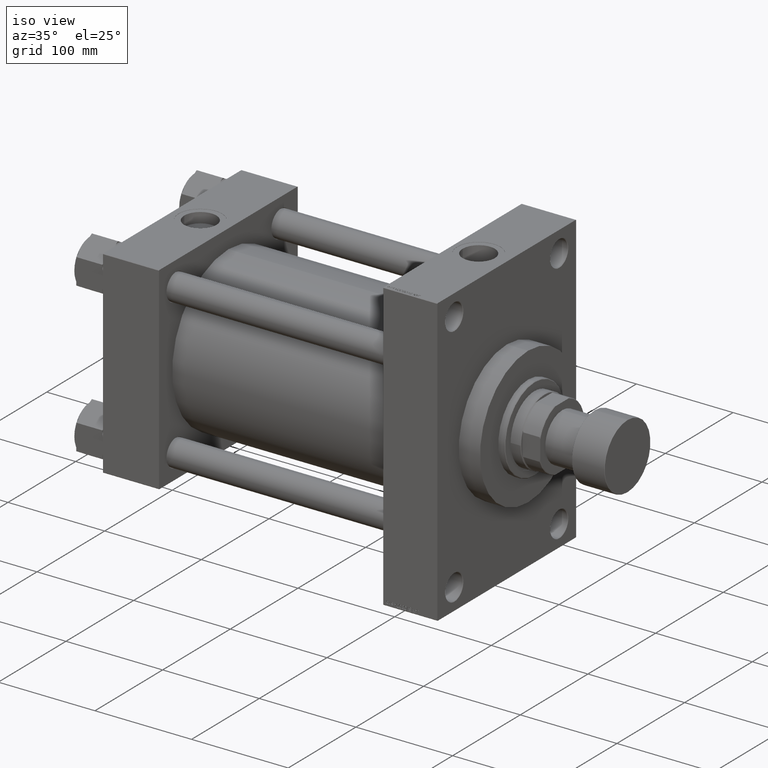
[diagram: clean part render]
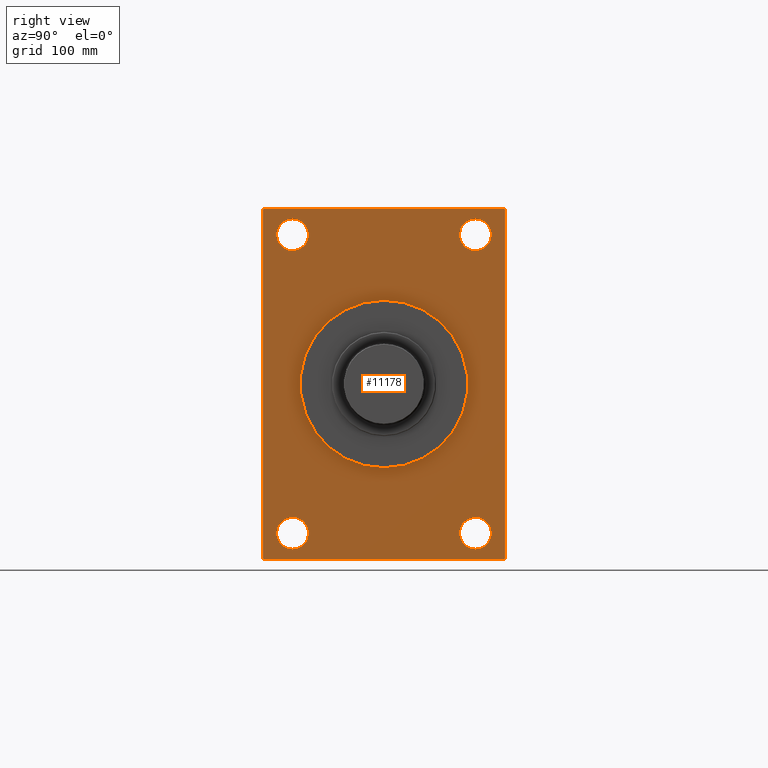
[diagram: tour spotlight — one face highlighted and labeled with its STEP entity id]
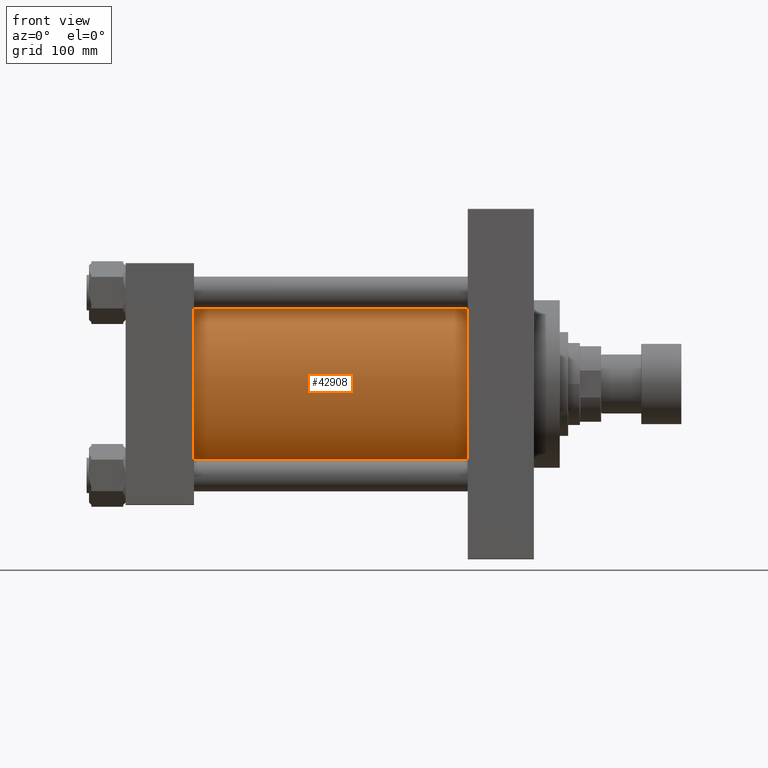
[diagram: tour spotlight — one face highlighted and labeled with its STEP entity id]
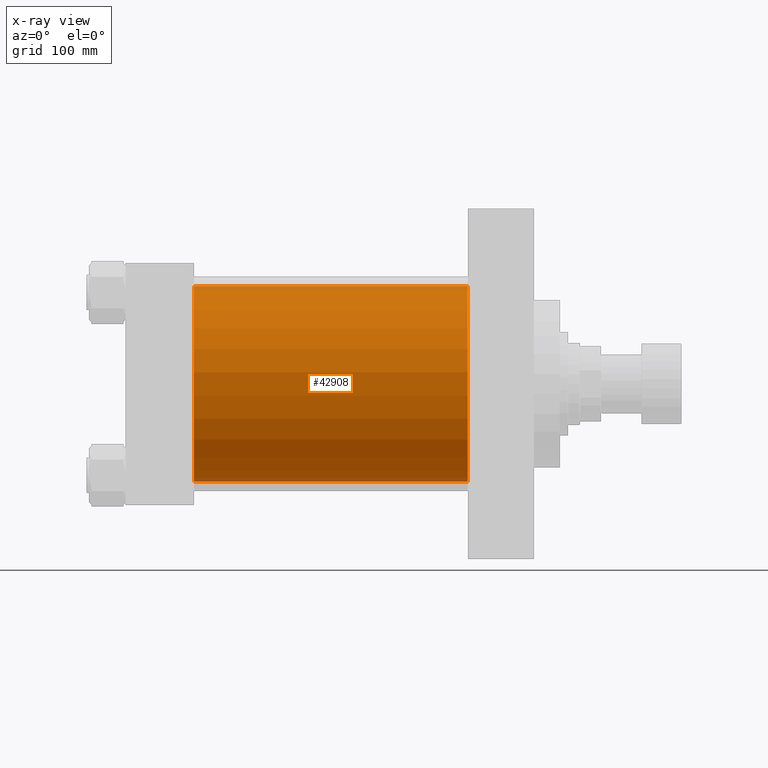
[diagram: x-ray of the same camera — body ghosted, this tour face saturated]
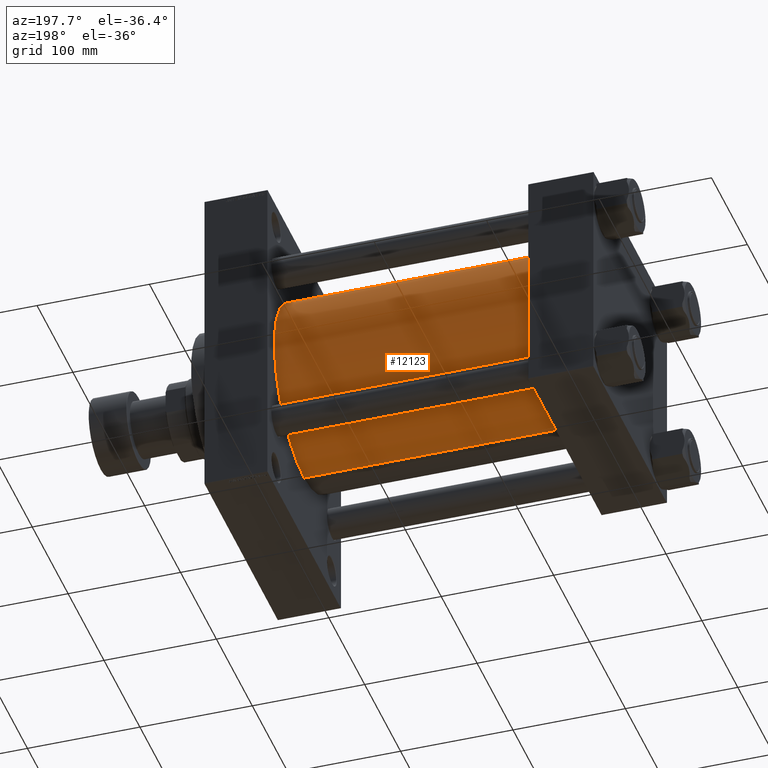
[diagram: tour spotlight — one face highlighted and labeled with its STEP entity id]
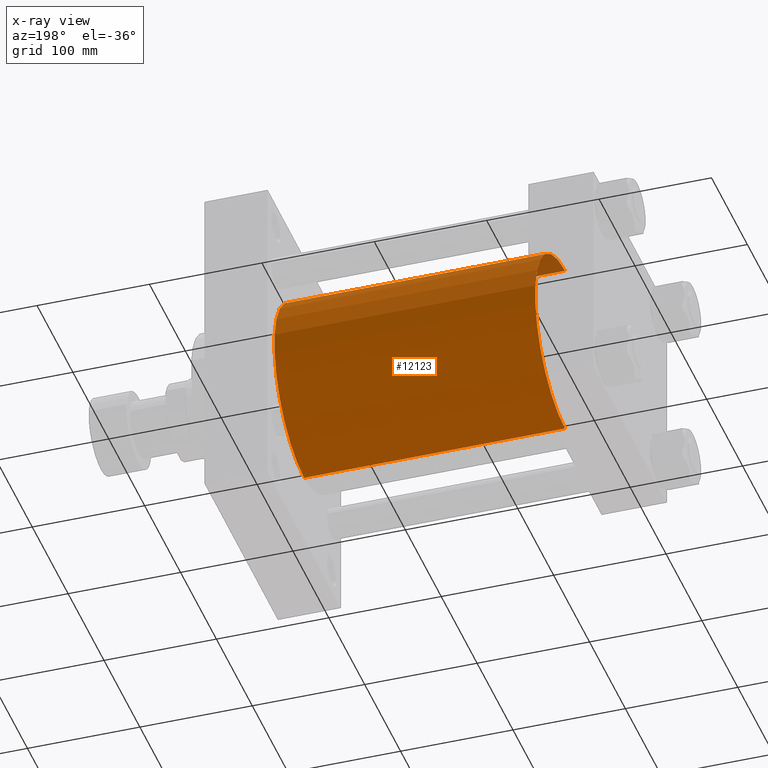
[diagram: x-ray of the same camera — body ghosted, this tour face saturated]
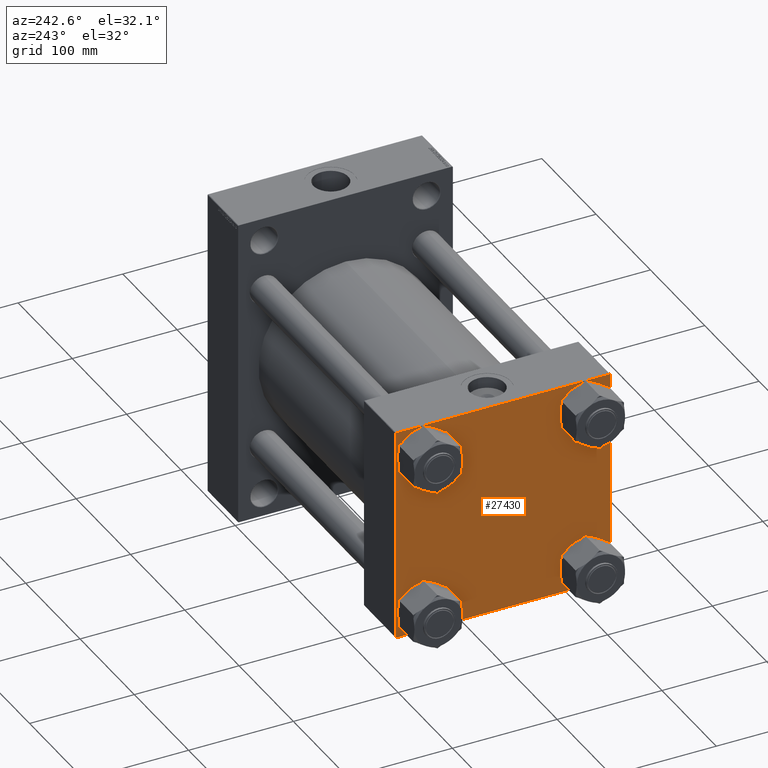
[diagram: tour spotlight — one face highlighted and labeled with its STEP entity id]
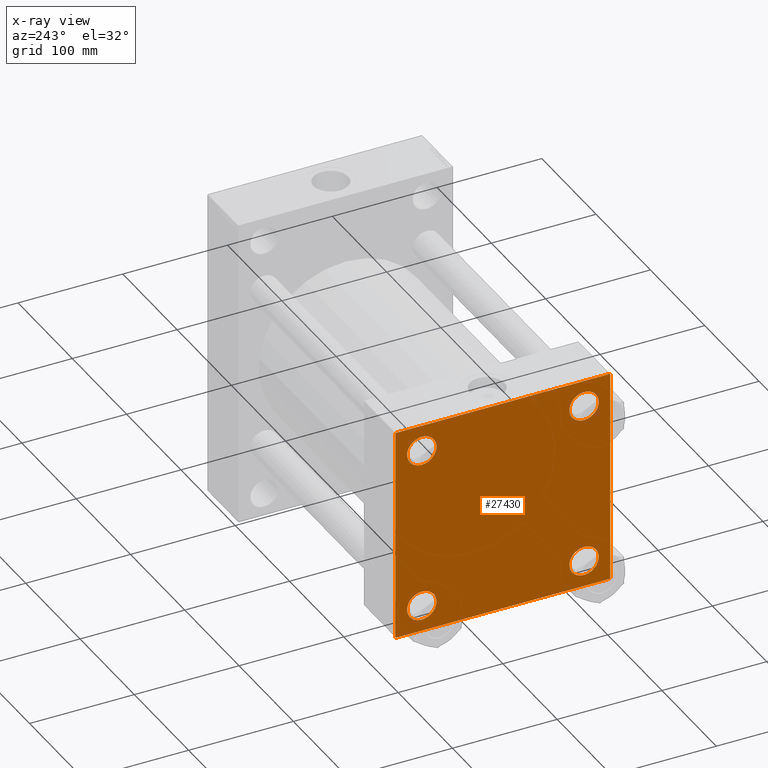
[diagram: x-ray of the same camera — body ghosted, this tour face saturated]
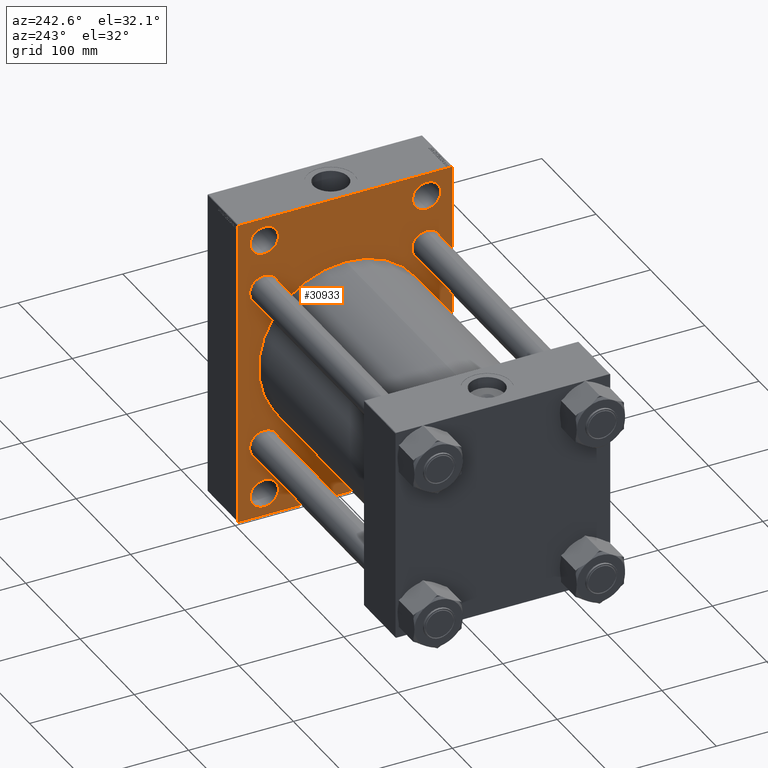
[diagram: tour spotlight — one face highlighted and labeled with its STEP entity id]
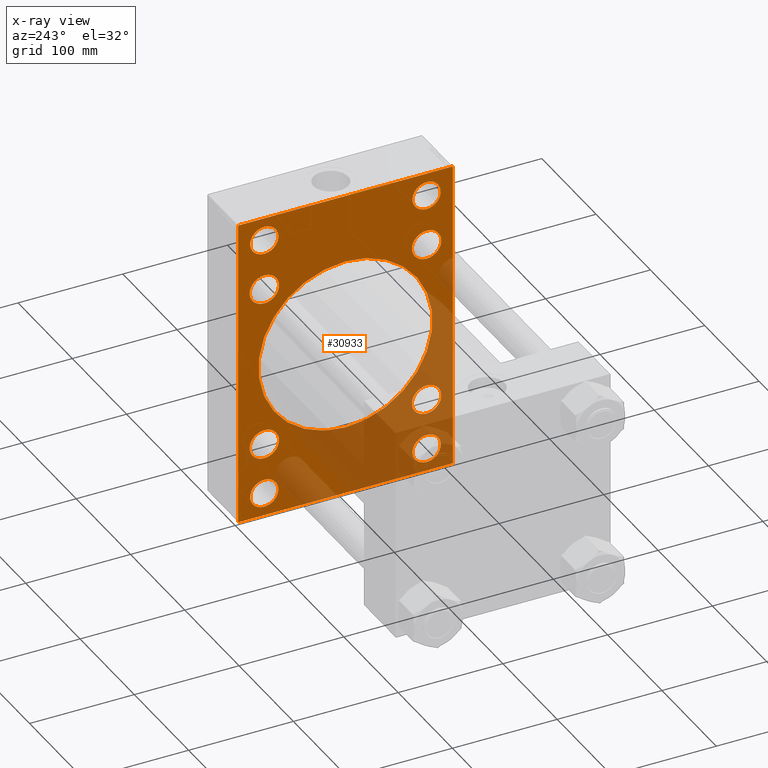
[diagram: x-ray of the same camera — body ghosted, this tour face saturated]
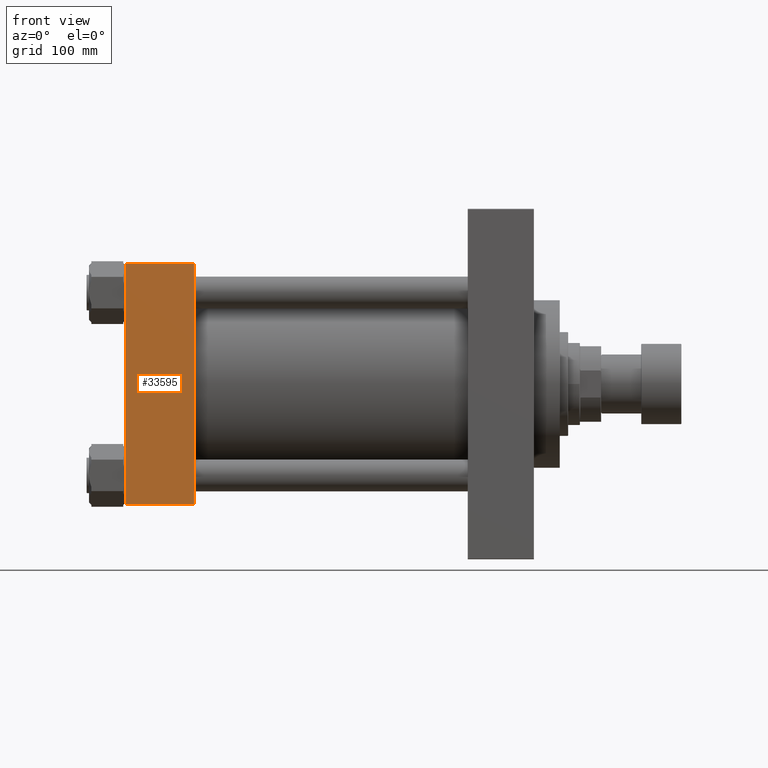
[diagram: tour spotlight — one face highlighted and labeled with its STEP entity id]
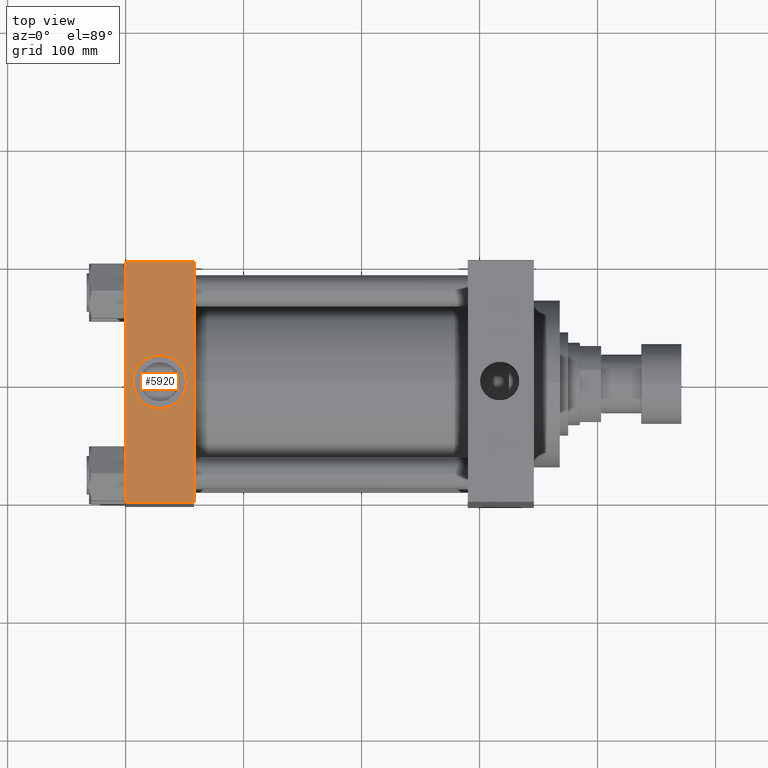
[diagram: tour spotlight — one face highlighted and labeled with its STEP entity id]
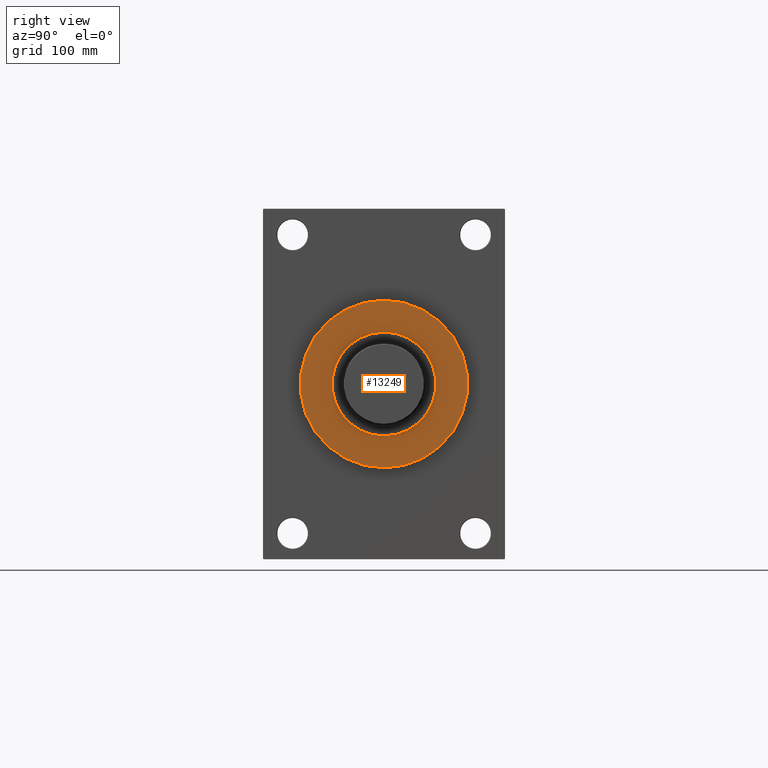
[diagram: tour spotlight — one face highlighted and labeled with its STEP entity id]
A machine part: a face-by-face anatomy tour. The part has 1162 B-rep faces; the first image is the clean iso view, then the 8 largest visible faces are spotlighted one at a time (largest first), each with its STEP entity span.

Face 1 — right view, entity #11178. In plain terms, the highlighted planar face has unit normal (-1, 0, 0).
Definition (entity closure, byte-faithful):
#388 = CARTESIAN_POINT ( 'NONE',  ( 346.0000000000000568, 102.4999999999999574, 148.5000000000000284 ) ) ;
#461 = EDGE_CURVE ( 'NONE', #11956, #7460, #2605, .T. ) ;
#570 = CARTESIAN_POINT ( 'NONE',  ( 346.0000000000000568, -77.49999999999998579, -140.0000000000000284 ) ) ;
#701 = EDGE_LOOP ( 'NONE', ( #27400, #30668 ) ) ;
#734 = LINE ( 'NONE', #44809, #18625 ) ;
#891 = CARTESIAN_POINT ( 'NONE',  ( 346.0000000000000568, -101.9999999999999005, -148.5000000000000284 ) ) ;
#953 = LINE ( 'NONE', #8500, #11779 ) ;
#1141 = DIRECTION ( 'NONE',  ( -1.000000000000000000, -0.000000000000000000, -0.000000000000000000 ) ) ;
#1201 = ORIENTED_EDGE ( 'NONE', *, *, #33217, .F. ) ;
#1709 = PLANE ( 'NONE',  #12878 ) ;
#2435 = ORIENTED_EDGE ( 'NONE', *, *, #48044, .T. ) ;
#2605 = CIRCLE ( 'NONE', #18881, 13.50000000000006750 ) ;
#3055 = DIRECTION ( 'NONE',  ( -1.000000000000000000, -0.000000000000000000, -0.000000000000000000 ) ) ;
#3535 = CARTESIAN_POINT ( 'NONE',  ( 346.0000000000000568, 102.4999999999999858, -147.9999999999998579 ) ) ;
#3720 = VERTEX_POINT ( 'NONE', #30863 ) ;
#4156 = DIRECTION ( 'NONE',  ( 0.000000000000000000, -1.000000000000000000, 0.000000000000000000 ) ) ;
#4174 = ORIENTED_EDGE ( 'NONE', *, *, #27283, .F. ) ;
#4416 = ORIENTED_EDGE ( 'NONE', *, *, #20325, .T. ) ;
#4837 = AXIS2_PLACEMENT_3D ( 'NONE', #11544, #26622, #25664 ) ;
#5091 = DIRECTION ( 'NONE',  ( 0.000000000000000000, -1.000000000000000000, -2.707861035671113946E-16 ) ) ;
#5149 = CARTESIAN_POINT ( 'NONE',  ( 346.0000000000000568, 0.000000000000000000, 0.000000000000000000 ) ) ;
#5566 = CARTESIAN_POINT ( 'NONE',  ( 346.0000000000000568, -102.0000000000000568, 148.4999999999999716 ) ) ;
#5784 = DIRECTION ( 'NONE',  ( 0.000000000000000000, -0.7071067811865474617, 0.7071067811865474617 ) ) ;
#5810 = CIRCLE ( 'NONE', #30620, 13.50000000000006750 ) ;
#5854 = EDGE_CURVE ( 'NONE', #3720, #41937, #19243, .T. ) ;
#6195 = VERTEX_POINT ( 'NONE', #22708 ) ;
#6309 = EDGE_CURVE ( 'NONE', #6934, #39384, #36386, .T. ) ;
#6726 = EDGE_LOOP ( 'NONE', ( #34980, #2435 ) ) ;
#6811 = AXIS2_PLACEMENT_3D ( 'NONE', #32750, #22036, #14959 ) ;
#6929 = CARTESIAN_POINT ( 'NONE',  ( 346.0000000000000568, 102.0000000000000142, 148.5000000000000284 ) ) ;
#6934 = VERTEX_POINT ( 'NONE', #570 ) ;
#7343 = ORIENTED_EDGE ( 'NONE', *, *, #7378, .T. ) ;
#7378 = EDGE_CURVE ( 'NONE', #46067, #39147, #953, .T. ) ;
#7460 = VERTEX_POINT ( 'NONE', #42576 ) ;
#8085 = VERTEX_POINT ( 'NONE', #24901 ) ;
#8500 = CARTESIAN_POINT ( 'NONE',  ( 346.0000000000000568, 102.4999999999999574, 148.5000000000000284 ) ) ;
#8582 = VERTEX_POINT ( 'NONE', #18858 ) ;
#8635 = CARTESIAN_POINT ( 'NONE',  ( 346.0000000000000568, 77.50000000000001421, 126.5000000000000284 ) ) ;
#9290 = CARTESIAN_POINT ( 'NONE',  ( 346.0000000000000568, 77.50000000000001421, -112.9999999999999005 ) ) ;
#9383 = LINE ( 'NONE', #24229, #40815 ) ;
#9434 = ORIENTED_EDGE ( 'NONE', *, *, #34510, .T. ) ;
#9722 = VECTOR ( 'NONE', #36722, 1000.000000000000114 ) ;
#9826 = EDGE_CURVE ( 'NONE', #24154, #23868, #41919, .T. ) ;
#10726 = EDGE_LOOP ( 'NONE', ( #20840, #13281, #4174, #45633, #1201, #47500, #7343, #39689 ) ) ;
#10779 = CARTESIAN_POINT ( 'NONE',  ( 346.0000000000000568, 8.694992273946208141E-15, 71.00000000000001421 ) ) ;
#11043 = CIRCLE ( 'NONE', #4837, 71.00000000000001421 ) ;
#11178 = ADVANCED_FACE ( 'NONE', ( #20210, #23866, #27756, #24353, #39210, #42629 ), #1709, .F. ) ;
#11335 = LINE ( 'NONE', #388, #44597 ) ;
#11544 = CARTESIAN_POINT ( 'NONE',  ( 346.0000000000000568, 0.000000000000000000, 0.000000000000000000 ) ) ;
#11779 = VECTOR ( 'NONE', #5091, 1000.000000000000000 ) ;
#11956 = VERTEX_POINT ( 'NONE', #16084 ) ;
#12407 = CARTESIAN_POINT ( 'NONE',  ( 346.0000000000000568, 77.50000000000001421, -126.4999999999999716 ) ) ;
#12878 = AXIS2_PLACEMENT_3D ( 'NONE', #5149, #41901, #23617 ) ;
#13281 = ORIENTED_EDGE ( 'NONE', *, *, #18732, .T. ) ;
#13436 = VERTEX_POINT ( 'NONE', #21902 ) ;
#13463 = CARTESIAN_POINT ( 'NONE',  ( 346.0000000000000568, 102.4999999999999574, 148.0000000000000853 ) ) ;
#14959 = DIRECTION ( 'NONE',  ( 0.000000000000000000, 0.000000000000000000, 1.000000000000000000 ) ) ;
#15391 = AXIS2_PLACEMENT_3D ( 'NONE', #43562, #43796, #35991 ) ;
#15648 = DIRECTION ( 'NONE',  ( -1.000000000000000000, -0.000000000000000000, -0.000000000000000000 ) ) ;
#15702 = VERTEX_POINT ( 'NONE', #891 ) ;
#16084 = CARTESIAN_POINT ( 'NONE',  ( 346.0000000000000568, -77.49999999999998579, 112.9999999999999574 ) ) ;
#16431 = DIRECTION ( 'NONE',  ( -0.000000000000000000, -0.7071067811865474617, -0.7071067811865474617 ) ) ;
#17321 = ORIENTED_EDGE ( 'NONE', *, *, #9826, .T. ) ;
#17344 = AXIS2_PLACEMENT_3D ( 'NONE', #8635, #31245, #23467 ) ;
#18625 = VECTOR ( 'NONE', #4156, 1000.000000000000000 ) ;
#18654 = CARTESIAN_POINT ( 'NONE',  ( 346.0000000000000568, -77.49999999999998579, -112.9999999999999005 ) ) ;
#18732 = EDGE_CURVE ( 'NONE', #6195, #15702, #36976, .T. ) ;
#18858 = CARTESIAN_POINT ( 'NONE',  ( 346.0000000000000568, 77.50000000000001421, 112.9999999999999574 ) ) ;
#18881 = AXIS2_PLACEMENT_3D ( 'NONE', #28354, #43238, #24478 ) ;
#19243 = CIRCLE ( 'NONE', #6811, 71.00000000000001421 ) ;
#19328 = EDGE_CURVE ( 'NONE', #39147, #13436, #9383, .T. ) ;
#20210 = FACE_BOUND ( 'NONE', #701, .T. ) ;
#20259 = VERTEX_POINT ( 'NONE', #3535 ) ;
#20325 = EDGE_CURVE ( 'NONE', #39384, #6934, #25256, .T. ) ;
#20840 = ORIENTED_EDGE ( 'NONE', *, *, #28202, .T. ) ;
#20939 = AXIS2_PLACEMENT_3D ( 'NONE', #25886, #15648, #44899 ) ;
#21042 = DIRECTION ( 'NONE',  ( 0.000000000000000000, 0.000000000000000000, -1.000000000000000000 ) ) ;
#21902 = CARTESIAN_POINT ( 'NONE',  ( 346.0000000000000568, -102.5000000000000142, 148.0000000000000284 ) ) ;
#22036 = DIRECTION ( 'NONE',  ( -1.000000000000000000, -0.000000000000000000, -0.000000000000000000 ) ) ;
#22169 = CARTESIAN_POINT ( 'NONE',  ( 346.0000000000000568, -102.5000000000000142, 148.4999999999999716 ) ) ;
#22708 = CARTESIAN_POINT ( 'NONE',  ( 346.0000000000000568, -102.5000000000000142, -147.9999999999999716 ) ) ;
#23015 = CIRCLE ( 'NONE', #44801, 13.50000000000006750 ) ;
#23059 = CARTESIAN_POINT ( 'NONE',  ( 346.0000000000000568, 77.50000000000001421, 126.5000000000000284 ) ) ;
#23467 = DIRECTION ( 'NONE',  ( 0.000000000000000000, 0.000000000000000000, 1.000000000000000000 ) ) ;
#23617 = DIRECTION ( 'NONE',  ( -0.000000000000000000, 0.000000000000000000, 1.000000000000000000 ) ) ;
#23866 = FACE_BOUND ( 'NONE', #31399, .T. ) ;
#23868 = VERTEX_POINT ( 'NONE', #9290 ) ;
#24154 = VERTEX_POINT ( 'NONE', #38451 ) ;
#24229 = CARTESIAN_POINT ( 'NONE',  ( 346.0000000000000568, -102.5000000000000142, 148.0000000000000284 ) ) ;
#24336 = DIRECTION ( 'NONE',  ( 0.000000000000000000, 0.000000000000000000, 1.000000000000000000 ) ) ;
#24353 = FACE_BOUND ( 'NONE', #6726, .T. ) ;
#24478 = DIRECTION ( 'NONE',  ( 0.000000000000000000, 0.000000000000000000, 1.000000000000000000 ) ) ;
#24602 = EDGE_CURVE ( 'NONE', #36088, #46067, #39369, .T. ) ;
#24901 = CARTESIAN_POINT ( 'NONE',  ( 346.0000000000000568, 101.9999999999999858, -148.5000000000000284 ) ) ;
#25256 = CIRCLE ( 'NONE', #47819, 13.50000000000006750 ) ;
#25428 = CARTESIAN_POINT ( 'NONE',  ( 346.0000000000000568, -77.49999999999998579, -126.4999999999999716 ) ) ;
#25664 = DIRECTION ( 'NONE',  ( 0.000000000000000000, 0.000000000000000000, 1.000000000000000000 ) ) ;
#25709 = VECTOR ( 'NONE', #5784, 1000.000000000000114 ) ;
#25886 = CARTESIAN_POINT ( 'NONE',  ( 346.0000000000000568, 77.50000000000001421, -126.4999999999999716 ) ) ;
#25898 = VECTOR ( 'NONE', #30297, 1000.000000000000000 ) ;
#26622 = DIRECTION ( 'NONE',  ( -1.000000000000000000, -0.000000000000000000, -0.000000000000000000 ) ) ;
#26912 = EDGE_LOOP ( 'NONE', ( #17321, #9434 ) ) ;
#27128 = DIRECTION ( 'NONE',  ( 0.000000000000000000, 9.345311655093910875E-17, -1.000000000000000000 ) ) ;
#27246 = DIRECTION ( 'NONE',  ( -1.000000000000000000, -0.000000000000000000, -0.000000000000000000 ) ) ;
#27283 = EDGE_CURVE ( 'NONE', #8085, #15702, #734, .T. ) ;
#27400 = ORIENTED_EDGE ( 'NONE', *, *, #461, .T. ) ;
#27756 = FACE_BOUND ( 'NONE', #26912, .T. ) ;
#28202 = EDGE_CURVE ( 'NONE', #13436, #6195, #44326, .T. ) ;
#28354 = CARTESIAN_POINT ( 'NONE',  ( 346.0000000000000568, -77.49999999999998579, 126.5000000000000284 ) ) ;
#30060 = LINE ( 'NONE', #45883, #25898 ) ;
#30297 = DIRECTION ( 'NONE',  ( -0.000000000000000000, 0.7071067811865081598, 0.7071067811865867636 ) ) ;
#30581 = DIRECTION ( 'NONE',  ( 0.000000000000000000, 0.000000000000000000, 1.000000000000000000 ) ) ;
#30615 = EDGE_CURVE ( 'NONE', #8582, #40047, #38350, .T. ) ;
#30620 = AXIS2_PLACEMENT_3D ( 'NONE', #41885, #27246, #35536 ) ;
#30668 = ORIENTED_EDGE ( 'NONE', *, *, #44588, .T. ) ;
#30863 = CARTESIAN_POINT ( 'NONE',  ( 346.0000000000000568, 0.000000000000000000, -71.00000000000001421 ) ) ;
#31245 = DIRECTION ( 'NONE',  ( -1.000000000000000000, -0.000000000000000000, -0.000000000000000000 ) ) ;
#31399 = EDGE_LOOP ( 'NONE', ( #43553, #4416 ) ) ;
#31802 = CARTESIAN_POINT ( 'NONE',  ( 346.0000000000000568, 102.0000000000000142, 148.5000000000000284 ) ) ;
#31875 = DIRECTION ( 'NONE',  ( -1.000000000000000000, -0.000000000000000000, -0.000000000000000000 ) ) ;
#32750 = CARTESIAN_POINT ( 'NONE',  ( 346.0000000000000568, 0.000000000000000000, 0.000000000000000000 ) ) ;
#33217 = EDGE_CURVE ( 'NONE', #36088, #20259, #11335, .T. ) ;
#34510 = EDGE_CURVE ( 'NONE', #23868, #24154, #42147, .T. ) ;
#34980 = ORIENTED_EDGE ( 'NONE', *, *, #30615, .T. ) ;
#35309 = CARTESIAN_POINT ( 'NONE',  ( 346.0000000000000568, 77.50000000000001421, 140.0000000000000853 ) ) ;
#35536 = DIRECTION ( 'NONE',  ( 0.000000000000000000, 0.000000000000000000, 1.000000000000000000 ) ) ;
#35991 = DIRECTION ( 'NONE',  ( 0.000000000000000000, 0.000000000000000000, 1.000000000000000000 ) ) ;
#36088 = VERTEX_POINT ( 'NONE', #13463 ) ;
#36386 = CIRCLE ( 'NONE', #15391, 13.50000000000006750 ) ;
#36722 = DIRECTION ( 'NONE',  ( 0.000000000000000000, 0.7071067811865474617, -0.7071067811865474617 ) ) ;
#36976 = LINE ( 'NONE', #41107, #9722 ) ;
#37397 = EDGE_LOOP ( 'NONE', ( #46791, #43925 ) ) ;
#38350 = CIRCLE ( 'NONE', #17344, 13.50000000000006750 ) ;
#38451 = CARTESIAN_POINT ( 'NONE',  ( 346.0000000000000568, 77.50000000000001421, -140.0000000000000284 ) ) ;
#38676 = EDGE_CURVE ( 'NONE', #41937, #3720, #11043, .T. ) ;
#39147 = VERTEX_POINT ( 'NONE', #5566 ) ;
#39210 = FACE_BOUND ( 'NONE', #37397, .T. ) ;
#39369 = LINE ( 'NONE', #31802, #25709 ) ;
#39384 = VERTEX_POINT ( 'NONE', #18654 ) ;
#39689 = ORIENTED_EDGE ( 'NONE', *, *, #19328, .T. ) ;
#39795 = AXIS2_PLACEMENT_3D ( 'NONE', #12407, #31875, #24336 ) ;
#40038 = DIRECTION ( 'NONE',  ( 0.000000000000000000, 0.000000000000000000, 1.000000000000000000 ) ) ;
#40047 = VERTEX_POINT ( 'NONE', #35309 ) ;
#40815 = VECTOR ( 'NONE', #16431, 1000.000000000000114 ) ;
#41107 = CARTESIAN_POINT ( 'NONE',  ( 346.0000000000000568, -101.9999999999999574, -148.5000000000000284 ) ) ;
#41885 = CARTESIAN_POINT ( 'NONE',  ( 346.0000000000000568, -77.49999999999998579, 126.5000000000000284 ) ) ;
#41901 = DIRECTION ( 'NONE',  ( -1.000000000000000000, 0.000000000000000000, -0.000000000000000000 ) ) ;
#41919 = CIRCLE ( 'NONE', #20939, 13.50000000000006750 ) ;
#41937 = VERTEX_POINT ( 'NONE', #10779 ) ;
#42147 = CIRCLE ( 'NONE', #39795, 13.50000000000006750 ) ;
#42576 = CARTESIAN_POINT ( 'NONE',  ( 346.0000000000000568, -77.49999999999998579, 140.0000000000000853 ) ) ;
#42583 = EDGE_CURVE ( 'NONE', #8085, #20259, #30060, .T. ) ;
#42629 = FACE_OUTER_BOUND ( 'NONE', #10726, .T. ) ;
#43238 = DIRECTION ( 'NONE',  ( -1.000000000000000000, -0.000000000000000000, -0.000000000000000000 ) ) ;
#43553 = ORIENTED_EDGE ( 'NONE', *, *, #6309, .T. ) ;
#43562 = CARTESIAN_POINT ( 'NONE',  ( 346.0000000000000568, -77.49999999999998579, -126.4999999999999716 ) ) ;
#43796 = DIRECTION ( 'NONE',  ( -1.000000000000000000, -0.000000000000000000, -0.000000000000000000 ) ) ;
#43925 = ORIENTED_EDGE ( 'NONE', *, *, #38676, .T. ) ;
#44326 = LINE ( 'NONE', #22169, #46977 ) ;
#44588 = EDGE_CURVE ( 'NONE', #7460, #11956, #5810, .T. ) ;
#44597 = VECTOR ( 'NONE', #27128, 1000.000000000000000 ) ;
#44801 = AXIS2_PLACEMENT_3D ( 'NONE', #23059, #1141, #30581 ) ;
#44809 = CARTESIAN_POINT ( 'NONE',  ( 346.0000000000000568, 102.4999999999999858, -148.5000000000000284 ) ) ;
#44899 = DIRECTION ( 'NONE',  ( 0.000000000000000000, 0.000000000000000000, 1.000000000000000000 ) ) ;
#45633 = ORIENTED_EDGE ( 'NONE', *, *, #42583, .T. ) ;
#45883 = CARTESIAN_POINT ( 'NONE',  ( 346.0000000000000568, 102.4999999999999858, -147.9999999999999716 ) ) ;
#46067 = VERTEX_POINT ( 'NONE', #6929 ) ;
#46791 = ORIENTED_EDGE ( 'NONE', *, *, #5854, .T. ) ;
#46977 = VECTOR ( 'NONE', #21042, 1000.000000000000000 ) ;
#47500 = ORIENTED_EDGE ( 'NONE', *, *, #24602, .T. ) ;
#47819 = AXIS2_PLACEMENT_3D ( 'NONE', #25428, #3055, #40038 ) ;
#48044 = EDGE_CURVE ( 'NONE', #40047, #8582, #23015, .T. ) ;

Face 2 — front view, entity #42908. An x-ray twin of the same camera follows (body ghosted, this face saturated) — the face is partly hidden behind the body. In plain terms, the highlighted cylindrical surface (partial cylindrical patch) has radius 83 mm, axis along (-1, -0, -0).
Definition (entity closure, byte-faithful):
#2953 = DIRECTION ( 'NONE',  ( 0.000000000000000000, 0.000000000000000000, 1.000000000000000000 ) ) ;
#3942 = AXIS2_PLACEMENT_3D ( 'NONE', #5637, #6359, #2953 ) ;
#5410 = CARTESIAN_POINT ( 'NONE',  ( 57.99999999999999289, 7.562483218957819277E-15, -83.00000000000000000 ) ) ;
#5637 = CARTESIAN_POINT ( 'NONE',  ( 57.99999999999999289, -2.602085213965210642E-15, 0.000000000000000000 ) ) ;
#5763 = DIRECTION ( 'NONE',  ( -1.000000000000000000, -0.000000000000000000, -0.000000000000000000 ) ) ;
#6359 = DIRECTION ( 'NONE',  ( 1.000000000000000000, -0.000000000000000000, 0.000000000000000000 ) ) ;
#6419 = CARTESIAN_POINT ( 'NONE',  ( 290.0000000000000568, 7.562483218957819277E-15, -83.00000000000000000 ) ) ;
#8247 = CIRCLE ( 'NONE', #35450, 83.00000000000000000 ) ;
#8807 = CARTESIAN_POINT ( 'NONE',  ( 290.0000000000000568, 7.562483218957819277E-15, -83.00000000000000000 ) ) ;
#9398 = CARTESIAN_POINT ( 'NONE',  ( 290.0000000000000568, -2.602085213965210642E-15, 83.00000000000000000 ) ) ;
#10075 = LINE ( 'NONE', #6419, #31952 ) ;
#11022 = CARTESIAN_POINT ( 'NONE',  ( 290.0000000000000568, -2.602085213965210642E-15, 0.000000000000000000 ) ) ;
#11262 = DIRECTION ( 'NONE',  ( 0.000000000000000000, 0.000000000000000000, 1.000000000000000000 ) ) ;
#11330 = VECTOR ( 'NONE', #5763, 1000.000000000000000 ) ;
#11934 = AXIS2_PLACEMENT_3D ( 'NONE', #11022, #25862, #11262 ) ;
#12778 = EDGE_CURVE ( 'NONE', #15669, #19030, #42759, .T. ) ;
#14088 = VERTEX_POINT ( 'NONE', #8807 ) ;
#14881 = EDGE_LOOP ( 'NONE', ( #19184, #34471, #16799, #43619 ) ) ;
#15669 = VERTEX_POINT ( 'NONE', #36443 ) ;
#16799 = ORIENTED_EDGE ( 'NONE', *, *, #12778, .T. ) ;
#18370 = CARTESIAN_POINT ( 'NONE',  ( 290.0000000000000568, -2.602085213965210642E-15, 0.000000000000000000 ) ) ;
#19030 = VERTEX_POINT ( 'NONE', #41293 ) ;
#19184 = ORIENTED_EDGE ( 'NONE', *, *, #37167, .F. ) ;
#21031 = CIRCLE ( 'NONE', #3942, 83.00000000000000000 ) ;
#21270 = DIRECTION ( 'NONE',  ( -1.000000000000000000, -0.000000000000000000, -0.000000000000000000 ) ) ;
#23889 = EDGE_CURVE ( 'NONE', #19030, #30909, #21031, .T. ) ;
#25862 = DIRECTION ( 'NONE',  ( -1.000000000000000000, -0.000000000000000000, -0.000000000000000000 ) ) ;
#29520 = FACE_OUTER_BOUND ( 'NONE', #14881, .T. ) ;
#30909 = VERTEX_POINT ( 'NONE', #5410 ) ;
#31952 = VECTOR ( 'NONE', #21270, 1000.000000000000000 ) ;
#32743 = DIRECTION ( 'NONE',  ( 1.000000000000000000, 0.000000000000000000, 0.000000000000000000 ) ) ;
#34471 = ORIENTED_EDGE ( 'NONE', *, *, #38677, .F. ) ;
#35450 = AXIS2_PLACEMENT_3D ( 'NONE', #18370, #32743, #36163 ) ;
#36163 = DIRECTION ( 'NONE',  ( 0.000000000000000000, 0.000000000000000000, -1.000000000000000000 ) ) ;
#36443 = CARTESIAN_POINT ( 'NONE',  ( 290.0000000000000568, -2.602085213965210642E-15, 83.00000000000000000 ) ) ;
#37167 = EDGE_CURVE ( 'NONE', #14088, #30909, #10075, .T. ) ;
#38677 = EDGE_CURVE ( 'NONE', #15669, #14088, #8247, .T. ) ;
#41293 = CARTESIAN_POINT ( 'NONE',  ( 57.99999999999999289, -2.602085213965210642E-15, 83.00000000000000000 ) ) ;
#42759 = LINE ( 'NONE', #9398, #11330 ) ;
#42908 = ADVANCED_FACE ( 'NONE', ( #29520 ), #44381, .T. ) ;
#43619 = ORIENTED_EDGE ( 'NONE', *, *, #23889, .T. ) ;
#44381 = CYLINDRICAL_SURFACE ( 'NONE', #11934, 83.00000000000000000 ) ;

Face 3 — auxiliary view, entity #12123. An x-ray twin of the same camera follows (body ghosted, this face saturated) — the face is partly hidden behind the body. In plain terms, the highlighted cylindrical surface (partial cylindrical patch) has radius 83 mm, axis along (-1, -0, -0).
Definition (entity closure, byte-faithful):
#860 = DIRECTION ( 'NONE',  ( 1.000000000000000000, -0.000000000000000000, 0.000000000000000000 ) ) ;
#2568 = ORIENTED_EDGE ( 'NONE', *, *, #31593, .T. ) ;
#4535 = ORIENTED_EDGE ( 'NONE', *, *, #12778, .F. ) ;
#5410 = CARTESIAN_POINT ( 'NONE',  ( 57.99999999999999289, 7.562483218957819277E-15, -83.00000000000000000 ) ) ;
#5763 = DIRECTION ( 'NONE',  ( -1.000000000000000000, -0.000000000000000000, -0.000000000000000000 ) ) ;
#6419 = CARTESIAN_POINT ( 'NONE',  ( 290.0000000000000568, 7.562483218957819277E-15, -83.00000000000000000 ) ) ;
#8164 = AXIS2_PLACEMENT_3D ( 'NONE', #37585, #33440, #47823 ) ;
#8807 = CARTESIAN_POINT ( 'NONE',  ( 290.0000000000000568, 7.562483218957819277E-15, -83.00000000000000000 ) ) ;
#9398 = CARTESIAN_POINT ( 'NONE',  ( 290.0000000000000568, -2.602085213965210642E-15, 83.00000000000000000 ) ) ;
#10075 = LINE ( 'NONE', #6419, #31952 ) ;
#11330 = VECTOR ( 'NONE', #5763, 1000.000000000000000 ) ;
#12123 = ADVANCED_FACE ( 'NONE', ( #26985 ), #30395, .T. ) ;
#12778 = EDGE_CURVE ( 'NONE', #15669, #19030, #42759, .T. ) ;
#14088 = VERTEX_POINT ( 'NONE', #8807 ) ;
#15669 = VERTEX_POINT ( 'NONE', #36443 ) ;
#15688 = DIRECTION ( 'NONE',  ( 0.000000000000000000, 0.000000000000000000, 1.000000000000000000 ) ) ;
#16602 = ORIENTED_EDGE ( 'NONE', *, *, #37167, .T. ) ;
#19030 = VERTEX_POINT ( 'NONE', #41293 ) ;
#21112 = ORIENTED_EDGE ( 'NONE', *, *, #46142, .F. ) ;
#21270 = DIRECTION ( 'NONE',  ( -1.000000000000000000, -0.000000000000000000, -0.000000000000000000 ) ) ;
#22630 = DIRECTION ( 'NONE',  ( 0.000000000000000000, 0.000000000000000000, 1.000000000000000000 ) ) ;
#23039 = AXIS2_PLACEMENT_3D ( 'NONE', #26744, #26505, #22630 ) ;
#26505 = DIRECTION ( 'NONE',  ( -1.000000000000000000, -0.000000000000000000, -0.000000000000000000 ) ) ;
#26744 = CARTESIAN_POINT ( 'NONE',  ( 290.0000000000000568, -2.602085213965210642E-15, 0.000000000000000000 ) ) ;
#26985 = FACE_OUTER_BOUND ( 'NONE', #41839, .T. ) ;
#29125 = CIRCLE ( 'NONE', #8164, 83.00000000000000000 ) ;
#30395 = CYLINDRICAL_SURFACE ( 'NONE', #23039, 83.00000000000000000 ) ;
#30909 = VERTEX_POINT ( 'NONE', #5410 ) ;
#31593 = EDGE_CURVE ( 'NONE', #30909, #19030, #34483, .T. ) ;
#31952 = VECTOR ( 'NONE', #21270, 1000.000000000000000 ) ;
#33440 = DIRECTION ( 'NONE',  ( 1.000000000000000000, 0.000000000000000000, 0.000000000000000000 ) ) ;
#34198 = CARTESIAN_POINT ( 'NONE',  ( 57.99999999999999289, -2.602085213965210642E-15, 0.000000000000000000 ) ) ;
#34483 = CIRCLE ( 'NONE', #46938, 83.00000000000000000 ) ;
#36443 = CARTESIAN_POINT ( 'NONE',  ( 290.0000000000000568, -2.602085213965210642E-15, 83.00000000000000000 ) ) ;
#37167 = EDGE_CURVE ( 'NONE', #14088, #30909, #10075, .T. ) ;
#37585 = CARTESIAN_POINT ( 'NONE',  ( 290.0000000000000568, -2.602085213965210642E-15, 0.000000000000000000 ) ) ;
#41293 = CARTESIAN_POINT ( 'NONE',  ( 57.99999999999999289, -2.602085213965210642E-15, 83.00000000000000000 ) ) ;
#41839 = EDGE_LOOP ( 'NONE', ( #21112, #16602, #2568, #4535 ) ) ;
#42759 = LINE ( 'NONE', #9398, #11330 ) ;
#46142 = EDGE_CURVE ( 'NONE', #14088, #15669, #29125, .T. ) ;
#46938 = AXIS2_PLACEMENT_3D ( 'NONE', #34198, #860, #15688 ) ;
#47823 = DIRECTION ( 'NONE',  ( 0.000000000000000000, 0.000000000000000000, -1.000000000000000000 ) ) ;

Face 4 — auxiliary view, entity #27430. An x-ray twin of the same camera follows (body ghosted, this face saturated) — the face is partly hidden behind the body. In plain terms, the highlighted planar face has unit normal (-1, 0, 0).
Definition (entity closure, byte-faithful):
#1265 = DIRECTION ( 'NONE',  ( 0.000000000000000000, 0.000000000000000000, -1.000000000000000000 ) ) ;
#1660 = DIRECTION ( 'NONE',  ( -0.000000000000000000, 0.7071067811865376918, 0.7071067811865574537 ) ) ;
#1735 = LINE ( 'NONE', #34364, #46110 ) ;
#1990 = DIRECTION ( 'NONE',  ( 0.000000000000000000, -0.7071067811865474617, 0.7071067811865474617 ) ) ;
#2006 = DIRECTION ( 'NONE',  ( 1.000000000000000000, -0.000000000000000000, 0.000000000000000000 ) ) ;
#2668 = FACE_BOUND ( 'NONE', #31649, .T. ) ;
#2728 = AXIS2_PLACEMENT_3D ( 'NONE', #4558, #37398, #45682 ) ;
#3117 = DIRECTION ( 'NONE',  ( 0.000000000000000000, 0.000000000000000000, 1.000000000000000000 ) ) ;
#3378 = CARTESIAN_POINT ( 'NONE',  ( 0.000000000000000000, 0.000000000000000000, 0.000000000000000000 ) ) ;
#3506 = VECTOR ( 'NONE', #43943, 1000.000000000000000 ) ;
#4069 = ORIENTED_EDGE ( 'NONE', *, *, #13910, .T. ) ;
#4217 = DIRECTION ( 'NONE',  ( 0.000000000000000000, -1.000000000000000000, -1.353930517835556973E-16 ) ) ;
#4479 = ORIENTED_EDGE ( 'NONE', *, *, #15063, .T. ) ;
#4558 = CARTESIAN_POINT ( 'NONE',  ( 0.000000000000000000, -77.44999999999997442, -77.45000000000000284 ) ) ;
#4576 = CARTESIAN_POINT ( 'NONE',  ( 0.000000000000000000, -102.4999999999999858, -101.9999999999999005 ) ) ;
#4612 = AXIS2_PLACEMENT_3D ( 'NONE', #21355, #17692, #10391 ) ;
#5988 = EDGE_CURVE ( 'NONE', #25673, #31991, #39301, .T. ) ;
#6082 = AXIS2_PLACEMENT_3D ( 'NONE', #48134, #7954, #3117 ) ;
#6221 = LINE ( 'NONE', #43242, #3506 ) ;
#6733 = EDGE_LOOP ( 'NONE', ( #40678, #4479 ) ) ;
#7852 = CARTESIAN_POINT ( 'NONE',  ( 0.000000000000000000, 102.5000000000000000, 102.5000000000000142 ) ) ;
#7954 = DIRECTION ( 'NONE',  ( 1.000000000000000000, -0.000000000000000000, 0.000000000000000000 ) ) ;
#8120 = ORIENTED_EDGE ( 'NONE', *, *, #12429, .T. ) ;
#8305 = CARTESIAN_POINT ( 'NONE',  ( 0.000000000000000000, 77.45000000000000284, -63.44999999999986784 ) ) ;
#9535 = CARTESIAN_POINT ( 'NONE',  ( 0.000000000000000000, -101.9999999999999147, -102.4999999999999716 ) ) ;
#9804 = CARTESIAN_POINT ( 'NONE',  ( 0.000000000000000000, -77.44999999999997442, 77.45000000000000284 ) ) ;
#10026 = DIRECTION ( 'NONE',  ( 0.000000000000000000, 0.000000000000000000, 1.000000000000000000 ) ) ;
#10361 = EDGE_CURVE ( 'NONE', #47053, #13616, #25574, .T. ) ;
#10391 = DIRECTION ( 'NONE',  ( 0.000000000000000000, 0.000000000000000000, 1.000000000000000000 ) ) ;
#10433 = FACE_BOUND ( 'NONE', #6733, .T. ) ;
#11286 = ORIENTED_EDGE ( 'NONE', *, *, #46087, .F. ) ;
#11503 = LINE ( 'NONE', #7852, #18910 ) ;
#11574 = EDGE_LOOP ( 'NONE', ( #12238, #12477 ) ) ;
#12238 = ORIENTED_EDGE ( 'NONE', *, *, #34750, .T. ) ;
#12284 = CARTESIAN_POINT ( 'NONE',  ( 0.000000000000000000, 77.45000000000000284, -91.45000000000011653 ) ) ;
#12330 = CARTESIAN_POINT ( 'NONE',  ( 0.000000000000000000, -101.9999999999999716, 102.4999999999999858 ) ) ;
#12429 = EDGE_CURVE ( 'NONE', #29533, #23030, #14283, .T. ) ;
#12477 = ORIENTED_EDGE ( 'NONE', *, *, #20190, .T. ) ;
#13055 = CARTESIAN_POINT ( 'NONE',  ( 0.000000000000000000, 102.5000000000000000, -101.9999999999999005 ) ) ;
#13265 = DIRECTION ( 'NONE',  ( 1.000000000000000000, -0.000000000000000000, 0.000000000000000000 ) ) ;
#13289 = CARTESIAN_POINT ( 'NONE',  ( 0.000000000000000000, -77.44999999999997442, -63.44999999999988205 ) ) ;
#13488 = ORIENTED_EDGE ( 'NONE', *, *, #21933, .T. ) ;
#13611 = VECTOR ( 'NONE', #18550, 1000.000000000000114 ) ;
#13616 = VERTEX_POINT ( 'NONE', #31849 ) ;
#13843 = DIRECTION ( 'NONE',  ( -0.000000000000000000, 0.000000000000000000, 1.000000000000000000 ) ) ;
#13910 = EDGE_CURVE ( 'NONE', #17720, #25673, #36346, .T. ) ;
#14283 = LINE ( 'NONE', #20907, #21462 ) ;
#14500 = VERTEX_POINT ( 'NONE', #41085 ) ;
#14920 = DIRECTION ( 'NONE',  ( 0.000000000000000000, 0.000000000000000000, 1.000000000000000000 ) ) ;
#15063 = EDGE_CURVE ( 'NONE', #30575, #18581, #29367, .T. ) ;
#15168 = EDGE_CURVE ( 'NONE', #13616, #47053, #43402, .T. ) ;
#16182 = EDGE_LOOP ( 'NONE', ( #13488, #26767 ) ) ;
#17475 = DIRECTION ( 'NONE',  ( 0.000000000000000000, 0.7071067811865474617, -0.7071067811865474617 ) ) ;
#17495 = FACE_BOUND ( 'NONE', #16182, .T. ) ;
#17681 = VECTOR ( 'NONE', #35142, 1000.000000000000000 ) ;
#17692 = DIRECTION ( 'NONE',  ( 1.000000000000000000, -0.000000000000000000, 0.000000000000000000 ) ) ;
#17720 = VERTEX_POINT ( 'NONE', #13055 ) ;
#18270 = DIRECTION ( 'NONE',  ( 0.000000000000000000, 0.000000000000000000, 1.000000000000000000 ) ) ;
#18422 = ORIENTED_EDGE ( 'NONE', *, *, #40855, .T. ) ;
#18550 = DIRECTION ( 'NONE',  ( -0.000000000000000000, -0.7071067811865474617, -0.7071067811865474617 ) ) ;
#18581 = VERTEX_POINT ( 'NONE', #8305 ) ;
#18910 = VECTOR ( 'NONE', #4217, 1000.000000000000000 ) ;
#19311 = EDGE_CURVE ( 'NONE', #18581, #30575, #34589, .T. ) ;
#20054 = AXIS2_PLACEMENT_3D ( 'NONE', #9804, #31704, #43416 ) ;
#20190 = EDGE_CURVE ( 'NONE', #26624, #41543, #33039, .T. ) ;
#20304 = CARTESIAN_POINT ( 'NONE',  ( 0.000000000000000000, 102.5000000000000000, -102.4999999999999289 ) ) ;
#20403 = LINE ( 'NONE', #32073, #43721 ) ;
#20537 = EDGE_CURVE ( 'NONE', #37094, #14500, #34568, .T. ) ;
#20907 = CARTESIAN_POINT ( 'NONE',  ( 0.000000000000000000, 102.2500000000000142, 102.2500000000000142 ) ) ;
#21355 = CARTESIAN_POINT ( 'NONE',  ( 0.000000000000000000, -77.44999999999997442, 77.45000000000000284 ) ) ;
#21462 = VECTOR ( 'NONE', #17475, 1000.000000000000114 ) ;
#21933 = EDGE_CURVE ( 'NONE', #14500, #37094, #37775, .T. ) ;
#22694 = AXIS2_PLACEMENT_3D ( 'NONE', #44174, #44402, #14920 ) ;
#23030 = VERTEX_POINT ( 'NONE', #27201 ) ;
#23687 = AXIS2_PLACEMENT_3D ( 'NONE', #36302, #36529, #18270 ) ;
#23829 = EDGE_CURVE ( 'NONE', #23030, #17720, #31176, .T. ) ;
#25139 = CARTESIAN_POINT ( 'NONE',  ( 0.000000000000000000, 102.2499999999999574, -102.2499999999999574 ) ) ;
#25275 = FACE_OUTER_BOUND ( 'NONE', #45418, .T. ) ;
#25574 = CIRCLE ( 'NONE', #4612, 14.00000000000012434 ) ;
#25673 = VERTEX_POINT ( 'NONE', #33003 ) ;
#25728 = ORIENTED_EDGE ( 'NONE', *, *, #5988, .T. ) ;
#25998 = CARTESIAN_POINT ( 'NONE',  ( 0.000000000000000000, -102.4999999999999858, 101.9999999999999574 ) ) ;
#26085 = AXIS2_PLACEMENT_3D ( 'NONE', #28516, #2006, #10026 ) ;
#26624 = VERTEX_POINT ( 'NONE', #45878 ) ;
#26767 = ORIENTED_EDGE ( 'NONE', *, *, #20537, .T. ) ;
#27201 = CARTESIAN_POINT ( 'NONE',  ( 0.000000000000000000, 102.5000000000000000, 102.0000000000000142 ) ) ;
#27430 = ADVANCED_FACE ( 'NONE', ( #2668, #43797, #10433, #17495, #25275 ), #40127, .T. ) ;
#28516 = CARTESIAN_POINT ( 'NONE',  ( 0.000000000000000000, 77.45000000000000284, 77.44999999999998863 ) ) ;
#29367 = CIRCLE ( 'NONE', #6082, 14.00000000000012434 ) ;
#29533 = VERTEX_POINT ( 'NONE', #40526 ) ;
#29894 = AXIS2_PLACEMENT_3D ( 'NONE', #42745, #13265, #42260 ) ;
#30026 = ORIENTED_EDGE ( 'NONE', *, *, #10361, .T. ) ;
#30575 = VERTEX_POINT ( 'NONE', #12284 ) ;
#30756 = EDGE_CURVE ( 'NONE', #29533, #32528, #11503, .T. ) ;
#31176 = LINE ( 'NONE', #34841, #35791 ) ;
#31649 = EDGE_LOOP ( 'NONE', ( #38356, #30026 ) ) ;
#31704 = DIRECTION ( 'NONE',  ( 1.000000000000000000, -0.000000000000000000, 0.000000000000000000 ) ) ;
#31849 = CARTESIAN_POINT ( 'NONE',  ( 0.000000000000000000, -77.44999999999997442, 91.45000000000013074 ) ) ;
#31991 = VERTEX_POINT ( 'NONE', #9535 ) ;
#32073 = CARTESIAN_POINT ( 'NONE',  ( -0.000000000000000000, -102.2500000000013785, 102.2499999999985363 ) ) ;
#32347 = DIRECTION ( 'NONE',  ( -1.000000000000000000, 0.000000000000000000, -0.000000000000000000 ) ) ;
#32528 = VERTEX_POINT ( 'NONE', #12330 ) ;
#32691 = CARTESIAN_POINT ( 'NONE',  ( 0.000000000000000000, 77.45000000000000284, 63.44999999999986784 ) ) ;
#33003 = CARTESIAN_POINT ( 'NONE',  ( 0.000000000000000000, 101.9999999999999716, -102.4999999999999289 ) ) ;
#33039 = CIRCLE ( 'NONE', #2728, 14.00000000000012434 ) ;
#33543 = VERTEX_POINT ( 'NONE', #25998 ) ;
#34364 = CARTESIAN_POINT ( 'NONE',  ( 0.000000000000000000, -102.2499999999999289, -102.2499999999999289 ) ) ;
#34568 = CIRCLE ( 'NONE', #23687, 14.00000000000012434 ) ;
#34589 = CIRCLE ( 'NONE', #29894, 14.00000000000012434 ) ;
#34750 = EDGE_CURVE ( 'NONE', #41543, #26624, #43696, .T. ) ;
#34841 = CARTESIAN_POINT ( 'NONE',  ( 0.000000000000000000, 102.5000000000000000, 102.5000000000000142 ) ) ;
#35142 = DIRECTION ( 'NONE',  ( 0.000000000000000000, -1.000000000000000000, -2.030895776753335460E-16 ) ) ;
#35355 = ORIENTED_EDGE ( 'NONE', *, *, #39173, .T. ) ;
#35791 = VECTOR ( 'NONE', #1265, 1000.000000000000000 ) ;
#36302 = CARTESIAN_POINT ( 'NONE',  ( 0.000000000000000000, 77.45000000000000284, 77.44999999999998863 ) ) ;
#36346 = LINE ( 'NONE', #25139, #13611 ) ;
#36441 = ORIENTED_EDGE ( 'NONE', *, *, #30756, .F. ) ;
#36529 = DIRECTION ( 'NONE',  ( 1.000000000000000000, -0.000000000000000000, 0.000000000000000000 ) ) ;
#37094 = VERTEX_POINT ( 'NONE', #32691 ) ;
#37398 = DIRECTION ( 'NONE',  ( 1.000000000000000000, -0.000000000000000000, 0.000000000000000000 ) ) ;
#37775 = CIRCLE ( 'NONE', #26085, 14.00000000000012434 ) ;
#38356 = ORIENTED_EDGE ( 'NONE', *, *, #15168, .T. ) ;
#39173 = EDGE_CURVE ( 'NONE', #33543, #32528, #20403, .T. ) ;
#39301 = LINE ( 'NONE', #20304, #17681 ) ;
#40127 = PLANE ( 'NONE',  #45854 ) ;
#40526 = CARTESIAN_POINT ( 'NONE',  ( 0.000000000000000000, 102.0000000000000000, 102.5000000000000142 ) ) ;
#40678 = ORIENTED_EDGE ( 'NONE', *, *, #19311, .T. ) ;
#40855 = EDGE_CURVE ( 'NONE', #31991, #41356, #1735, .T. ) ;
#41085 = CARTESIAN_POINT ( 'NONE',  ( 0.000000000000000000, 77.45000000000000284, 91.45000000000011653 ) ) ;
#41356 = VERTEX_POINT ( 'NONE', #4576 ) ;
#41543 = VERTEX_POINT ( 'NONE', #13289 ) ;
#42260 = DIRECTION ( 'NONE',  ( 0.000000000000000000, 0.000000000000000000, 1.000000000000000000 ) ) ;
#42745 = CARTESIAN_POINT ( 'NONE',  ( 0.000000000000000000, 77.45000000000000284, -77.44999999999998863 ) ) ;
#43242 = CARTESIAN_POINT ( 'NONE',  ( 0.000000000000000000, -102.4999999999999858, 102.4999999999999858 ) ) ;
#43402 = CIRCLE ( 'NONE', #20054, 14.00000000000012434 ) ;
#43416 = DIRECTION ( 'NONE',  ( 0.000000000000000000, 0.000000000000000000, 1.000000000000000000 ) ) ;
#43696 = CIRCLE ( 'NONE', #22694, 14.00000000000012434 ) ;
#43721 = VECTOR ( 'NONE', #1660, 999.9999999999998863 ) ;
#43797 = FACE_BOUND ( 'NONE', #11574, .T. ) ;
#43943 = DIRECTION ( 'NONE',  ( 0.000000000000000000, 0.000000000000000000, -1.000000000000000000 ) ) ;
#44174 = CARTESIAN_POINT ( 'NONE',  ( 0.000000000000000000, -77.44999999999997442, -77.45000000000000284 ) ) ;
#44402 = DIRECTION ( 'NONE',  ( 1.000000000000000000, -0.000000000000000000, 0.000000000000000000 ) ) ;
#45418 = EDGE_LOOP ( 'NONE', ( #45574, #4069, #25728, #18422, #11286, #35355, #36441, #8120 ) ) ;
#45442 = CARTESIAN_POINT ( 'NONE',  ( 0.000000000000000000, -77.44999999999997442, 63.44999999999988205 ) ) ;
#45574 = ORIENTED_EDGE ( 'NONE', *, *, #23829, .T. ) ;
#45682 = DIRECTION ( 'NONE',  ( 0.000000000000000000, 0.000000000000000000, 1.000000000000000000 ) ) ;
#45854 = AXIS2_PLACEMENT_3D ( 'NONE', #3378, #32347, #13843 ) ;
#45878 = CARTESIAN_POINT ( 'NONE',  ( 0.000000000000000000, -77.44999999999997442, -91.45000000000013074 ) ) ;
#46087 = EDGE_CURVE ( 'NONE', #33543, #41356, #6221, .T. ) ;
#46110 = VECTOR ( 'NONE', #1990, 1000.000000000000114 ) ;
#47053 = VERTEX_POINT ( 'NONE', #45442 ) ;
#48134 = CARTESIAN_POINT ( 'NONE',  ( 0.000000000000000000, 77.45000000000000284, -77.44999999999998863 ) ) ;

Face 5 — auxiliary view, entity #30933. An x-ray twin of the same camera follows (body ghosted, this face saturated) — the face is partly hidden behind the body. In plain terms, the highlighted planar face has unit normal (-1, 0, 0).
Definition (entity closure, byte-faithful):
#294 = VECTOR ( 'NONE', #34207, 1000.000000000000000 ) ;
#1068 = CARTESIAN_POINT ( 'NONE',  ( 290.0000000000000568, -77.44999999999997442, -77.45000000000000284 ) ) ;
#1328 = CARTESIAN_POINT ( 'NONE',  ( 290.0000000000000568, 77.50000000000001421, -140.0000000000000284 ) ) ;
#1479 = VERTEX_POINT ( 'NONE', #36203 ) ;
#1585 = EDGE_LOOP ( 'NONE', ( #16529, #17653 ) ) ;
#1812 = LINE ( 'NONE', #20310, #25937 ) ;
#1836 = CIRCLE ( 'NONE', #43821, 13.50000000000001243 ) ;
#2184 = ORIENTED_EDGE ( 'NONE', *, *, #27528, .T. ) ;
#2236 = CARTESIAN_POINT ( 'NONE',  ( 290.0000000000000568, -77.44999999999997442, -63.44999999999999574 ) ) ;
#2246 = DIRECTION ( 'NONE',  ( -0.000000000000000000, 0.000000000000000000, 1.000000000000000000 ) ) ;
#2371 = CARTESIAN_POINT ( 'NONE',  ( 290.0000000000000568, -102.5000000000000142, 148.0000000000000284 ) ) ;
#2632 = VERTEX_POINT ( 'NONE', #45547 ) ;
#3013 = DIRECTION ( 'NONE',  ( 1.000000000000000000, 0.000000000000000000, 0.000000000000000000 ) ) ;
#3051 = CARTESIAN_POINT ( 'NONE',  ( 290.0000000000000568, 77.50000000000001421, 126.5000000000000284 ) ) ;
#3095 = VERTEX_POINT ( 'NONE', #30029 ) ;
#3574 = CARTESIAN_POINT ( 'NONE',  ( 290.0000000000000568, -102.5000000000000142, 148.4999999999999716 ) ) ;
#3578 = VERTEX_POINT ( 'NONE', #24596 ) ;
#3620 = ORIENTED_EDGE ( 'NONE', *, *, #13754, .T. ) ;
#3652 = EDGE_CURVE ( 'NONE', #21225, #24575, #29192, .T. ) ;
#3879 = VERTEX_POINT ( 'NONE', #28661 ) ;
#4011 = CIRCLE ( 'NONE', #16425, 14.00000000000001243 ) ;
#4127 = AXIS2_PLACEMENT_3D ( 'NONE', #30014, #22725, #11278 ) ;
#4170 = VECTOR ( 'NONE', #9358, 1000.000000000000114 ) ;
#4378 = DIRECTION ( 'NONE',  ( 0.000000000000000000, 0.000000000000000000, 1.000000000000000000 ) ) ;
#4989 = EDGE_CURVE ( 'NONE', #39085, #37076, #4011, .T. ) ;
#5036 = VERTEX_POINT ( 'NONE', #2236 ) ;
#5447 = DIRECTION ( 'NONE',  ( 1.000000000000000000, 0.000000000000000000, 0.000000000000000000 ) ) ;
#5532 = CARTESIAN_POINT ( 'NONE',  ( 290.0000000000000568, -102.0000000000000568, 148.4999999999999716 ) ) ;
#5572 = EDGE_CURVE ( 'NONE', #5913, #2632, #19554, .T. ) ;
#5913 = VERTEX_POINT ( 'NONE', #1328 ) ;
#6712 = CARTESIAN_POINT ( 'NONE',  ( 290.0000000000000568, -77.49999999999998579, 126.5000000000000284 ) ) ;
#6773 = DIRECTION ( 'NONE',  ( 1.000000000000000000, 0.000000000000000000, 0.000000000000000000 ) ) ;
#6958 = AXIS2_PLACEMENT_3D ( 'NONE', #3051, #29070, #43941 ) ;
#7037 = LINE ( 'NONE', #21878, #22151 ) ;
#7405 = EDGE_CURVE ( 'NONE', #34337, #29617, #38675, .T. ) ;
#7506 = DIRECTION ( 'NONE',  ( 1.000000000000000000, 0.000000000000000000, 0.000000000000000000 ) ) ;
#7658 = CARTESIAN_POINT ( 'NONE',  ( 290.0000000000000568, -102.5000000000000142, -147.9999999999999716 ) ) ;
#8046 = CARTESIAN_POINT ( 'NONE',  ( 290.0000000000000568, 102.0000000000000142, 148.5000000000000284 ) ) ;
#8164 = AXIS2_PLACEMENT_3D ( 'NONE', #37585, #33440, #47823 ) ;
#8247 = CIRCLE ( 'NONE', #35450, 83.00000000000000000 ) ;
#8489 = VERTEX_POINT ( 'NONE', #44204 ) ;
#8536 = EDGE_CURVE ( 'NONE', #38799, #3879, #33834, .T. ) ;
#8573 = FACE_BOUND ( 'NONE', #15881, .T. ) ;
#8807 = CARTESIAN_POINT ( 'NONE',  ( 290.0000000000000568, 7.562483218957819277E-15, -83.00000000000000000 ) ) ;
#9033 = ORIENTED_EDGE ( 'NONE', *, *, #41625, .T. ) ;
#9358 = DIRECTION ( 'NONE',  ( 0.000000000000000000, 0.7071067811865474617, -0.7071067811865474617 ) ) ;
#10582 = CARTESIAN_POINT ( 'NONE',  ( 290.0000000000000568, -77.49999999999998579, 140.0000000000000284 ) ) ;
#10637 = EDGE_CURVE ( 'NONE', #20340, #3578, #27943, .T. ) ;
#10807 = CARTESIAN_POINT ( 'NONE',  ( 290.0000000000000568, 77.50000000000001421, 126.5000000000000284 ) ) ;
#11214 = ORIENTED_EDGE ( 'NONE', *, *, #42553, .T. ) ;
#11278 = DIRECTION ( 'NONE',  ( 0.000000000000000000, 0.000000000000000000, 1.000000000000000000 ) ) ;
#12253 = EDGE_LOOP ( 'NONE', ( #20598, #29660 ) ) ;
#12277 = AXIS2_PLACEMENT_3D ( 'NONE', #18925, #7506, #37426 ) ;
#12312 = CIRCLE ( 'NONE', #39525, 13.50000000000006750 ) ;
#12406 = CIRCLE ( 'NONE', #47392, 14.00000000000001243 ) ;
#12676 = AXIS2_PLACEMENT_3D ( 'NONE', #21026, #3013, #35631 ) ;
#13170 = FACE_BOUND ( 'NONE', #16435, .T. ) ;
#13754 = EDGE_CURVE ( 'NONE', #33550, #20251, #26819, .T. ) ;
#13774 = DIRECTION ( 'NONE',  ( 0.000000000000000000, 0.000000000000000000, 1.000000000000000000 ) ) ;
#13838 = CIRCLE ( 'NONE', #12277, 14.00000000000001243 ) ;
#13889 = FACE_BOUND ( 'NONE', #17472, .T. ) ;
#14088 = VERTEX_POINT ( 'NONE', #8807 ) ;
#14227 = DIRECTION ( 'NONE',  ( 0.000000000000000000, 0.000000000000000000, 1.000000000000000000 ) ) ;
#14478 = EDGE_CURVE ( 'NONE', #37076, #39085, #13838, .T. ) ;
#14732 = CARTESIAN_POINT ( 'NONE',  ( 290.0000000000000568, 102.4999999999999858, -148.5000000000000284 ) ) ;
#15160 = ORIENTED_EDGE ( 'NONE', *, *, #5572, .T. ) ;
#15666 = EDGE_CURVE ( 'NONE', #3879, #38799, #12312, .T. ) ;
#15669 = VERTEX_POINT ( 'NONE', #36443 ) ;
#15758 = ORIENTED_EDGE ( 'NONE', *, *, #3652, .T. ) ;
#15881 = EDGE_LOOP ( 'NONE', ( #43401, #15160 ) ) ;
#15950 = VERTEX_POINT ( 'NONE', #7658 ) ;
#16425 = AXIS2_PLACEMENT_3D ( 'NONE', #34123, #25324, #28019 ) ;
#16435 = EDGE_LOOP ( 'NONE', ( #3620, #26160 ) ) ;
#16529 = ORIENTED_EDGE ( 'NONE', *, *, #14478, .T. ) ;
#16574 = FACE_BOUND ( 'NONE', #27320, .T. ) ;
#16653 = EDGE_LOOP ( 'NONE', ( #25524, #2184, #44921, #15758, #17087, #33852, #22380, #27349 ) ) ;
#16739 = AXIS2_PLACEMENT_3D ( 'NONE', #40533, #40778, #13774 ) ;
#17087 = ORIENTED_EDGE ( 'NONE', *, *, #33263, .F. ) ;
#17472 = EDGE_LOOP ( 'NONE', ( #44427, #45858 ) ) ;
#17550 = CARTESIAN_POINT ( 'NONE',  ( 290.0000000000000568, 77.45000000000000284, 77.44999999999998863 ) ) ;
#17653 = ORIENTED_EDGE ( 'NONE', *, *, #4989, .T. ) ;
#17781 = FACE_BOUND ( 'NONE', #12253, .T. ) ;
#17939 = DIRECTION ( 'NONE',  ( 0.000000000000000000, 0.000000000000000000, 1.000000000000000000 ) ) ;
#18122 = CARTESIAN_POINT ( 'NONE',  ( 290.0000000000000568, 102.4999999999999858, -147.9999999999998579 ) ) ;
#18370 = CARTESIAN_POINT ( 'NONE',  ( 290.0000000000000568, -2.602085213965210642E-15, 0.000000000000000000 ) ) ;
#18623 = LINE ( 'NONE', #14732, #294 ) ;
#18652 = CARTESIAN_POINT ( 'NONE',  ( 290.0000000000000568, -77.49999999999998579, -126.4999999999999716 ) ) ;
#18762 = EDGE_CURVE ( 'NONE', #29617, #3095, #7037, .T. ) ;
#18864 = CARTESIAN_POINT ( 'NONE',  ( 290.0000000000000568, -77.49999999999998579, 126.5000000000000284 ) ) ;
#18925 = CARTESIAN_POINT ( 'NONE',  ( 290.0000000000000568, 77.45000000000000284, -77.44999999999998863 ) ) ;
#19076 = EDGE_LOOP ( 'NONE', ( #34506, #27503 ) ) ;
#19352 = CARTESIAN_POINT ( 'NONE',  ( 290.0000000000000568, 77.45000000000000284, 91.45000000000000284 ) ) ;
#19554 = CIRCLE ( 'NONE', #46783, 13.50000000000006750 ) ;
#20160 = VECTOR ( 'NONE', #34501, 1000.000000000000114 ) ;
#20251 = VERTEX_POINT ( 'NONE', #38612 ) ;
#20310 = CARTESIAN_POINT ( 'NONE',  ( 290.0000000000000568, 102.4999999999999574, 148.5000000000000284 ) ) ;
#20340 = VERTEX_POINT ( 'NONE', #22261 ) ;
#20598 = ORIENTED_EDGE ( 'NONE', *, *, #38677, .T. ) ;
#20657 = CARTESIAN_POINT ( 'NONE',  ( 290.0000000000000568, 77.45000000000000284, -91.45000000000000284 ) ) ;
#21026 = CARTESIAN_POINT ( 'NONE',  ( 290.0000000000000568, 77.45000000000000284, 77.44999999999998863 ) ) ;
#21170 = CIRCLE ( 'NONE', #47574, 13.50000000000001243 ) ;
#21225 = VERTEX_POINT ( 'NONE', #2371 ) ;
#21247 = CIRCLE ( 'NONE', #12676, 14.00000000000001243 ) ;
#21286 = EDGE_LOOP ( 'NONE', ( #34654, #29197 ) ) ;
#21293 = DIRECTION ( 'NONE',  ( 0.000000000000000000, 0.000000000000000000, 1.000000000000000000 ) ) ;
#21878 = CARTESIAN_POINT ( 'NONE',  ( 290.0000000000000568, 125.2500000000056559, -125.2499999999917577 ) ) ;
#21922 = VERTEX_POINT ( 'NONE', #24633 ) ;
#22011 = VERTEX_POINT ( 'NONE', #8046 ) ;
#22151 = VECTOR ( 'NONE', #30856, 1000.000000000000000 ) ;
#22261 = CARTESIAN_POINT ( 'NONE',  ( 290.0000000000000568, 77.50000000000001421, 140.0000000000000284 ) ) ;
#22357 = CARTESIAN_POINT ( 'NONE',  ( 290.0000000000000568, -125.2500000000000000, -125.2500000000000000 ) ) ;
#22365 = CARTESIAN_POINT ( 'NONE',  ( 290.0000000000000568, -77.44999999999997442, 91.45000000000001705 ) ) ;
#22380 = ORIENTED_EDGE ( 'NONE', *, *, #7405, .T. ) ;
#22725 = DIRECTION ( 'NONE',  ( 1.000000000000000000, 0.000000000000000000, 0.000000000000000000 ) ) ;
#23408 = FACE_BOUND ( 'NONE', #19076, .T. ) ;
#24531 = AXIS2_PLACEMENT_3D ( 'NONE', #38430, #27212, #4378 ) ;
#24575 = VERTEX_POINT ( 'NONE', #5532 ) ;
#24596 = CARTESIAN_POINT ( 'NONE',  ( 290.0000000000000568, 77.50000000000001421, 113.0000000000000142 ) ) ;
#24633 = CARTESIAN_POINT ( 'NONE',  ( 290.0000000000000568, -77.44999999999997442, -91.45000000000001705 ) ) ;
#24915 = CARTESIAN_POINT ( 'NONE',  ( 290.0000000000000568, 77.45000000000000284, -63.44999999999998153 ) ) ;
#25089 = DIRECTION ( 'NONE',  ( -1.000000000000000000, 0.000000000000000000, -0.000000000000000000 ) ) ;
#25167 = AXIS2_PLACEMENT_3D ( 'NONE', #25940, #37139, #33976 ) ;
#25324 = DIRECTION ( 'NONE',  ( 1.000000000000000000, 0.000000000000000000, 0.000000000000000000 ) ) ;
#25524 = ORIENTED_EDGE ( 'NONE', *, *, #27970, .T. ) ;
#25688 = DIRECTION ( 'NONE',  ( 0.000000000000000000, 0.000000000000000000, 1.000000000000000000 ) ) ;
#25786 = EDGE_CURVE ( 'NONE', #21225, #15950, #29353, .T. ) ;
#25802 = DIRECTION ( 'NONE',  ( 1.000000000000000000, 0.000000000000000000, 0.000000000000000000 ) ) ;
#25937 = VECTOR ( 'NONE', #28332, 1000.000000000000000 ) ;
#25940 = CARTESIAN_POINT ( 'NONE',  ( 290.0000000000000568, -77.44999999999997442, 77.45000000000000284 ) ) ;
#26160 = ORIENTED_EDGE ( 'NONE', *, *, #27991, .T. ) ;
#26189 = DIRECTION ( 'NONE',  ( 0.000000000000000000, 0.000000000000000000, -1.000000000000000000 ) ) ;
#26449 = VECTOR ( 'NONE', #26189, 1000.000000000000000 ) ;
#26819 = CIRCLE ( 'NONE', #42398, 14.00000000000001243 ) ;
#27101 = CARTESIAN_POINT ( 'NONE',  ( 290.0000000000000568, -77.49999999999998579, -140.0000000000000284 ) ) ;
#27105 = EDGE_CURVE ( 'NONE', #42641, #39491, #12406, .T. ) ;
#27212 = DIRECTION ( 'NONE',  ( 1.000000000000000000, 0.000000000000000000, 0.000000000000000000 ) ) ;
#27320 = EDGE_LOOP ( 'NONE', ( #11214, #9033 ) ) ;
#27349 = ORIENTED_EDGE ( 'NONE', *, *, #18762, .T. ) ;
#27489 = CIRCLE ( 'NONE', #25167, 14.00000000000001243 ) ;
#27503 = ORIENTED_EDGE ( 'NONE', *, *, #34751, .T. ) ;
#27528 = EDGE_CURVE ( 'NONE', #8489, #15950, #45469, .T. ) ;
#27943 = CIRCLE ( 'NONE', #6958, 13.50000000000001243 ) ;
#27970 = EDGE_CURVE ( 'NONE', #3095, #8489, #18623, .T. ) ;
#27991 = EDGE_CURVE ( 'NONE', #20251, #33550, #27489, .T. ) ;
#28019 = DIRECTION ( 'NONE',  ( 0.000000000000000000, 0.000000000000000000, 1.000000000000000000 ) ) ;
#28029 = FACE_BOUND ( 'NONE', #35487, .T. ) ;
#28176 = CIRCLE ( 'NONE', #37480, 14.00000000000001243 ) ;
#28279 = CARTESIAN_POINT ( 'NONE',  ( 290.0000000000000568, 102.4999999999999574, 148.0000000000000853 ) ) ;
#28332 = DIRECTION ( 'NONE',  ( 0.000000000000000000, -1.000000000000000000, -2.707861035671113946E-16 ) ) ;
#28661 = CARTESIAN_POINT ( 'NONE',  ( 290.0000000000000568, -77.49999999999998579, -112.9999999999999005 ) ) ;
#29060 = DIRECTION ( 'NONE',  ( 1.000000000000000000, 0.000000000000000000, 0.000000000000000000 ) ) ;
#29070 = DIRECTION ( 'NONE',  ( 1.000000000000000000, 0.000000000000000000, 0.000000000000000000 ) ) ;
#29125 = CIRCLE ( 'NONE', #8164, 83.00000000000000000 ) ;
#29192 = LINE ( 'NONE', #40382, #33119 ) ;
#29197 = ORIENTED_EDGE ( 'NONE', *, *, #8536, .T. ) ;
#29294 = EDGE_CURVE ( 'NONE', #5036, #21922, #42317, .T. ) ;
#29353 = LINE ( 'NONE', #3574, #26449 ) ;
#29617 = VERTEX_POINT ( 'NONE', #18122 ) ;
#29660 = ORIENTED_EDGE ( 'NONE', *, *, #46142, .T. ) ;
#30014 = CARTESIAN_POINT ( 'NONE',  ( 290.0000000000000568, -77.44999999999997442, -77.45000000000000284 ) ) ;
#30029 = CARTESIAN_POINT ( 'NONE',  ( 290.0000000000000568, 101.9999999999999858, -148.5000000000000284 ) ) ;
#30288 = DIRECTION ( 'NONE',  ( 1.000000000000000000, 0.000000000000000000, 0.000000000000000000 ) ) ;
#30630 = EDGE_CURVE ( 'NONE', #39491, #42641, #21247, .T. ) ;
#30856 = DIRECTION ( 'NONE',  ( -0.000000000000000000, -0.7071067811865081598, -0.7071067811865867636 ) ) ;
#30933 = ADVANCED_FACE ( 'NONE', ( #16574, #41926, #8573, #23408, #13170, #28029, #46299, #13889, #17781, #32152 ), #35808, .T. ) ;
#32076 = CARTESIAN_POINT ( 'NONE',  ( 290.0000000000000568, 102.4999999999999574, 148.5000000000000284 ) ) ;
#32152 = FACE_OUTER_BOUND ( 'NONE', #16653, .T. ) ;
#32543 = ORIENTED_EDGE ( 'NONE', *, *, #27105, .T. ) ;
#32743 = DIRECTION ( 'NONE',  ( 1.000000000000000000, 0.000000000000000000, 0.000000000000000000 ) ) ;
#32746 = DIRECTION ( 'NONE',  ( 1.000000000000000000, 0.000000000000000000, 0.000000000000000000 ) ) ;
#32788 = DIRECTION ( 'NONE',  ( 1.000000000000000000, 0.000000000000000000, 0.000000000000000000 ) ) ;
#33049 = DIRECTION ( 'NONE',  ( 0.000000000000000000, 0.000000000000000000, 1.000000000000000000 ) ) ;
#33088 = DIRECTION ( 'NONE',  ( -0.000000000000000000, 0.7071067811865474617, 0.7071067811865474617 ) ) ;
#33119 = VECTOR ( 'NONE', #33088, 1000.000000000000114 ) ;
#33263 = EDGE_CURVE ( 'NONE', #22011, #24575, #1812, .T. ) ;
#33440 = DIRECTION ( 'NONE',  ( 1.000000000000000000, 0.000000000000000000, 0.000000000000000000 ) ) ;
#33550 = VERTEX_POINT ( 'NONE', #22365 ) ;
#33834 = CIRCLE ( 'NONE', #16739, 13.50000000000006750 ) ;
#33852 = ORIENTED_EDGE ( 'NONE', *, *, #42806, .T. ) ;
#33961 = DIRECTION ( 'NONE',  ( 0.000000000000000000, 0.000000000000000000, 1.000000000000000000 ) ) ;
#33976 = DIRECTION ( 'NONE',  ( 0.000000000000000000, 0.000000000000000000, 1.000000000000000000 ) ) ;
#34123 = CARTESIAN_POINT ( 'NONE',  ( 290.0000000000000568, 77.45000000000000284, -77.44999999999998863 ) ) ;
#34207 = DIRECTION ( 'NONE',  ( 0.000000000000000000, -1.000000000000000000, 0.000000000000000000 ) ) ;
#34337 = VERTEX_POINT ( 'NONE', #28279 ) ;
#34501 = DIRECTION ( 'NONE',  ( 0.000000000000000000, -0.7071067811865474617, 0.7071067811865474617 ) ) ;
#34506 = ORIENTED_EDGE ( 'NONE', *, *, #10637, .T. ) ;
#34654 = ORIENTED_EDGE ( 'NONE', *, *, #15666, .T. ) ;
#34751 = EDGE_CURVE ( 'NONE', #3578, #20340, #21170, .T. ) ;
#34883 = DIRECTION ( 'NONE',  ( 0.000000000000000000, 0.000000000000000000, 1.000000000000000000 ) ) ;
#35188 = CARTESIAN_POINT ( 'NONE',  ( 290.0000000000000568, 77.45000000000000284, 63.44999999999998153 ) ) ;
#35450 = AXIS2_PLACEMENT_3D ( 'NONE', #18370, #32743, #36163 ) ;
#35487 = EDGE_LOOP ( 'NONE', ( #32543, #35842 ) ) ;
#35631 = DIRECTION ( 'NONE',  ( 0.000000000000000000, 0.000000000000000000, 1.000000000000000000 ) ) ;
#35808 = PLANE ( 'NONE',  #39935 ) ;
#35842 = ORIENTED_EDGE ( 'NONE', *, *, #30630, .T. ) ;
#36163 = DIRECTION ( 'NONE',  ( 0.000000000000000000, 0.000000000000000000, -1.000000000000000000 ) ) ;
#36203 = CARTESIAN_POINT ( 'NONE',  ( 290.0000000000000568, -77.49999999999998579, 113.0000000000000142 ) ) ;
#36443 = CARTESIAN_POINT ( 'NONE',  ( 290.0000000000000568, -2.602085213965210642E-15, 83.00000000000000000 ) ) ;
#37076 = VERTEX_POINT ( 'NONE', #24915 ) ;
#37139 = DIRECTION ( 'NONE',  ( 1.000000000000000000, 0.000000000000000000, 0.000000000000000000 ) ) ;
#37426 = DIRECTION ( 'NONE',  ( 0.000000000000000000, 0.000000000000000000, 1.000000000000000000 ) ) ;
#37480 = AXIS2_PLACEMENT_3D ( 'NONE', #1068, #5447, #34883 ) ;
#37549 = CIRCLE ( 'NONE', #41447, 13.50000000000001243 ) ;
#37585 = CARTESIAN_POINT ( 'NONE',  ( 290.0000000000000568, -2.602085213965210642E-15, 0.000000000000000000 ) ) ;
#38430 = CARTESIAN_POINT ( 'NONE',  ( 290.0000000000000568, 77.50000000000001421, -126.4999999999999716 ) ) ;
#38612 = CARTESIAN_POINT ( 'NONE',  ( 290.0000000000000568, -77.44999999999997442, 63.44999999999999574 ) ) ;
#38668 = VERTEX_POINT ( 'NONE', #10582 ) ;
#38675 = LINE ( 'NONE', #32076, #39752 ) ;
#38677 = EDGE_CURVE ( 'NONE', #15669, #14088, #8247, .T. ) ;
#38742 = EDGE_CURVE ( 'NONE', #21922, #5036, #28176, .T. ) ;
#38799 = VERTEX_POINT ( 'NONE', #27101 ) ;
#39085 = VERTEX_POINT ( 'NONE', #20657 ) ;
#39474 = CARTESIAN_POINT ( 'NONE',  ( 290.0000000000000568, 0.000000000000000000, 0.000000000000000000 ) ) ;
#39491 = VERTEX_POINT ( 'NONE', #35188 ) ;
#39525 = AXIS2_PLACEMENT_3D ( 'NONE', #18652, #32788, #17939 ) ;
#39752 = VECTOR ( 'NONE', #46470, 1000.000000000000000 ) ;
#39935 = AXIS2_PLACEMENT_3D ( 'NONE', #39474, #25089, #2246 ) ;
#40382 = CARTESIAN_POINT ( 'NONE',  ( 290.0000000000000568, -125.2500000000000000, 125.2500000000000000 ) ) ;
#40533 = CARTESIAN_POINT ( 'NONE',  ( 290.0000000000000568, -77.49999999999998579, -126.4999999999999716 ) ) ;
#40778 = DIRECTION ( 'NONE',  ( 1.000000000000000000, 0.000000000000000000, 0.000000000000000000 ) ) ;
#41025 = DIRECTION ( 'NONE',  ( 1.000000000000000000, 0.000000000000000000, 0.000000000000000000 ) ) ;
#41079 = CARTESIAN_POINT ( 'NONE',  ( 290.0000000000000568, 77.50000000000001421, -126.4999999999999716 ) ) ;
#41447 = AXIS2_PLACEMENT_3D ( 'NONE', #6712, #32746, #14227 ) ;
#41625 = EDGE_CURVE ( 'NONE', #1479, #38668, #37549, .T. ) ;
#41926 = FACE_BOUND ( 'NONE', #21286, .T. ) ;
#42317 = CIRCLE ( 'NONE', #4127, 14.00000000000001243 ) ;
#42398 = AXIS2_PLACEMENT_3D ( 'NONE', #45395, #30288, #33961 ) ;
#42553 = EDGE_CURVE ( 'NONE', #38668, #1479, #1836, .T. ) ;
#42641 = VERTEX_POINT ( 'NONE', #19352 ) ;
#42718 = CARTESIAN_POINT ( 'NONE',  ( 290.0000000000000568, 125.2500000000000000, 125.2500000000000000 ) ) ;
#42806 = EDGE_CURVE ( 'NONE', #22011, #34337, #43445, .T. ) ;
#43401 = ORIENTED_EDGE ( 'NONE', *, *, #46707, .T. ) ;
#43445 = LINE ( 'NONE', #42718, #4170 ) ;
#43821 = AXIS2_PLACEMENT_3D ( 'NONE', #18864, #41025, #25688 ) ;
#43941 = DIRECTION ( 'NONE',  ( 0.000000000000000000, 0.000000000000000000, 1.000000000000000000 ) ) ;
#44204 = CARTESIAN_POINT ( 'NONE',  ( 290.0000000000000568, -101.9999999999999005, -148.5000000000000284 ) ) ;
#44319 = DIRECTION ( 'NONE',  ( 0.000000000000000000, 0.000000000000000000, 1.000000000000000000 ) ) ;
#44427 = ORIENTED_EDGE ( 'NONE', *, *, #29294, .T. ) ;
#44921 = ORIENTED_EDGE ( 'NONE', *, *, #25786, .F. ) ;
#45395 = CARTESIAN_POINT ( 'NONE',  ( 290.0000000000000568, -77.44999999999997442, 77.45000000000000284 ) ) ;
#45469 = LINE ( 'NONE', #22357, #20160 ) ;
#45513 = CIRCLE ( 'NONE', #24531, 13.50000000000006750 ) ;
#45547 = CARTESIAN_POINT ( 'NONE',  ( 290.0000000000000568, 77.50000000000001421, -112.9999999999999005 ) ) ;
#45858 = ORIENTED_EDGE ( 'NONE', *, *, #38742, .T. ) ;
#46142 = EDGE_CURVE ( 'NONE', #14088, #15669, #29125, .T. ) ;
#46299 = FACE_BOUND ( 'NONE', #1585, .T. ) ;
#46470 = DIRECTION ( 'NONE',  ( 0.000000000000000000, 9.345311655093910875E-17, -1.000000000000000000 ) ) ;
#46707 = EDGE_CURVE ( 'NONE', #2632, #5913, #45513, .T. ) ;
#46783 = AXIS2_PLACEMENT_3D ( 'NONE', #41079, #6773, #33049 ) ;
#47392 = AXIS2_PLACEMENT_3D ( 'NONE', #17550, #25802, #44319 ) ;
#47574 = AXIS2_PLACEMENT_3D ( 'NONE', #10807, #29060, #21293 ) ;
#47823 = DIRECTION ( 'NONE',  ( 0.000000000000000000, 0.000000000000000000, -1.000000000000000000 ) ) ;

Face 6 — front view, entity #33595. In plain terms, the highlighted planar face has unit normal (0, 1, 0).
Definition (entity closure, byte-faithful):
#1584 = EDGE_LOOP ( 'NONE', ( #10568, #24213, #31753, #20048 ) ) ;
#1780 = VECTOR ( 'NONE', #42981, 1000.000000000000000 ) ;
#2693 = EDGE_CURVE ( 'NONE', #37762, #12364, #17267, .T. ) ;
#3506 = VECTOR ( 'NONE', #43943, 1000.000000000000000 ) ;
#3640 = CARTESIAN_POINT ( 'NONE',  ( 58.00000000000000000, -102.4999999999999858, 102.4999999999999858 ) ) ;
#4576 = CARTESIAN_POINT ( 'NONE',  ( 0.000000000000000000, -102.4999999999999858, -101.9999999999999005 ) ) ;
#6221 = LINE ( 'NONE', #43242, #3506 ) ;
#7273 = CARTESIAN_POINT ( 'NONE',  ( 58.00000000000000000, -102.4999999999999858, 101.9999999999999574 ) ) ;
#8043 = AXIS2_PLACEMENT_3D ( 'NONE', #3640, #15026, #29886 ) ;
#9493 = DIRECTION ( 'NONE',  ( 0.000000000000000000, 0.000000000000000000, -1.000000000000000000 ) ) ;
#10568 = ORIENTED_EDGE ( 'NONE', *, *, #46087, .T. ) ;
#12364 = VERTEX_POINT ( 'NONE', #45975 ) ;
#15026 = DIRECTION ( 'NONE',  ( -0.000000000000000000, 1.000000000000000000, 0.000000000000000000 ) ) ;
#17267 = LINE ( 'NONE', #21411, #36991 ) ;
#17316 = CARTESIAN_POINT ( 'NONE',  ( 58.00000000000000000, -102.4999999999999858, -101.9999999999999005 ) ) ;
#20048 = ORIENTED_EDGE ( 'NONE', *, *, #29099, .T. ) ;
#21411 = CARTESIAN_POINT ( 'NONE',  ( 58.00000000000000000, -102.4999999999999858, 102.4999999999999858 ) ) ;
#21874 = EDGE_CURVE ( 'NONE', #41356, #12364, #35584, .T. ) ;
#24213 = ORIENTED_EDGE ( 'NONE', *, *, #21874, .T. ) ;
#25998 = CARTESIAN_POINT ( 'NONE',  ( 0.000000000000000000, -102.4999999999999858, 101.9999999999999574 ) ) ;
#26896 = VECTOR ( 'NONE', #31439, 1000.000000000000000 ) ;
#28107 = CARTESIAN_POINT ( 'NONE',  ( 58.00000000000000000, -102.4999999999999858, 101.9999999999999574 ) ) ;
#29099 = EDGE_CURVE ( 'NONE', #37762, #33543, #31030, .T. ) ;
#29886 = DIRECTION ( 'NONE',  ( 0.000000000000000000, -0.000000000000000000, 1.000000000000000000 ) ) ;
#31030 = LINE ( 'NONE', #28107, #1780 ) ;
#31439 = DIRECTION ( 'NONE',  ( 1.000000000000000000, 0.000000000000000000, 0.000000000000000000 ) ) ;
#31753 = ORIENTED_EDGE ( 'NONE', *, *, #2693, .F. ) ;
#33543 = VERTEX_POINT ( 'NONE', #25998 ) ;
#33595 = ADVANCED_FACE ( 'NONE', ( #40132 ), #47925, .F. ) ;
#35584 = LINE ( 'NONE', #17316, #26896 ) ;
#36991 = VECTOR ( 'NONE', #9493, 1000.000000000000000 ) ;
#37762 = VERTEX_POINT ( 'NONE', #7273 ) ;
#40132 = FACE_OUTER_BOUND ( 'NONE', #1584, .T. ) ;
#41356 = VERTEX_POINT ( 'NONE', #4576 ) ;
#42981 = DIRECTION ( 'NONE',  ( -1.000000000000000000, 0.000000000000000000, 0.000000000000000000 ) ) ;
#43242 = CARTESIAN_POINT ( 'NONE',  ( 0.000000000000000000, -102.4999999999999858, 102.4999999999999858 ) ) ;
#43943 = DIRECTION ( 'NONE',  ( 0.000000000000000000, 0.000000000000000000, -1.000000000000000000 ) ) ;
#45975 = CARTESIAN_POINT ( 'NONE',  ( 58.00000000000000000, -102.4999999999999858, -101.9999999999999005 ) ) ;
#46087 = EDGE_CURVE ( 'NONE', #33543, #41356, #6221, .T. ) ;
#47925 = PLANE ( 'NONE',  #8043 ) ;

Face 7 — top view, entity #5920. In plain terms, the highlighted planar face has unit normal (0, 0, -1).
Definition (entity closure, byte-faithful):
#415 = EDGE_LOOP ( 'NONE', ( #37159, #28702, #2688, #41002 ) ) ;
#821 = AXIS2_PLACEMENT_3D ( 'NONE', #40253, #36591, #40488 ) ;
#2688 = ORIENTED_EDGE ( 'NONE', *, *, #27622, .F. ) ;
#3074 = CARTESIAN_POINT ( 'NONE',  ( 0.000000000000000000, 102.0000000000000000, 102.5000000000000142 ) ) ;
#3886 = VECTOR ( 'NONE', #45712, 1000.000000000000000 ) ;
#4217 = DIRECTION ( 'NONE',  ( 0.000000000000000000, -1.000000000000000000, -1.353930517835556973E-16 ) ) ;
#5536 = CARTESIAN_POINT ( 'NONE',  ( 58.00000000000000000, 102.5000000000000000, 102.5000000000000142 ) ) ;
#5873 = EDGE_CURVE ( 'NONE', #9759, #29533, #28849, .T. ) ;
#5920 = ADVANCED_FACE ( 'NONE', ( #45164, #41757 ), #23013, .F. ) ;
#6291 = CARTESIAN_POINT ( 'NONE',  ( 58.00000000000000000, -101.9999999999999716, 102.4999999999999858 ) ) ;
#7852 = CARTESIAN_POINT ( 'NONE',  ( 0.000000000000000000, 102.5000000000000000, 102.5000000000000142 ) ) ;
#8960 = AXIS2_PLACEMENT_3D ( 'NONE', #23684, #16373, #42444 ) ;
#9759 = VERTEX_POINT ( 'NONE', #40640 ) ;
#9884 = EDGE_CURVE ( 'NONE', #32528, #12417, #22490, .T. ) ;
#10603 = DIRECTION ( 'NONE',  ( -1.000000000000000000, 0.000000000000000000, 0.000000000000000000 ) ) ;
#11503 = LINE ( 'NONE', #7852, #18910 ) ;
#12042 = DIRECTION ( 'NONE',  ( 0.000000000000000000, 1.000000000000000000, 1.353930517835557220E-16 ) ) ;
#12295 = ORIENTED_EDGE ( 'NONE', *, *, #25995, .F. ) ;
#12330 = CARTESIAN_POINT ( 'NONE',  ( 0.000000000000000000, -101.9999999999999716, 102.4999999999999858 ) ) ;
#12417 = VERTEX_POINT ( 'NONE', #6291 ) ;
#16373 = DIRECTION ( 'NONE',  ( 0.000000000000000000, 0.000000000000000000, 1.000000000000000000 ) ) ;
#16921 = VECTOR ( 'NONE', #10603, 1000.000000000000000 ) ;
#16984 = EDGE_LOOP ( 'NONE', ( #12295, #17381 ) ) ;
#17381 = ORIENTED_EDGE ( 'NONE', *, *, #46312, .F. ) ;
#18910 = VECTOR ( 'NONE', #4217, 1000.000000000000000 ) ;
#19110 = CARTESIAN_POINT ( 'NONE',  ( 58.00000000000000000, 102.5000000000000000, 102.5000000000000142 ) ) ;
#22490 = LINE ( 'NONE', #37092, #32567 ) ;
#22713 = CARTESIAN_POINT ( 'NONE',  ( 51.50000000000000711, -1.561251128379126701E-14, 102.5000000000000000 ) ) ;
#23013 = PLANE ( 'NONE',  #45705 ) ;
#23470 = DIRECTION ( 'NONE',  ( 0.000000000000000000, 1.353930517835557220E-16, -1.000000000000000000 ) ) ;
#23684 = CARTESIAN_POINT ( 'NONE',  ( 29.00000000000000000, -1.561251128379126701E-14, 102.5000000000000000 ) ) ;
#25995 = EDGE_CURVE ( 'NONE', #31877, #39732, #31900, .T. ) ;
#27622 = EDGE_CURVE ( 'NONE', #9759, #12417, #42057, .T. ) ;
#28702 = ORIENTED_EDGE ( 'NONE', *, *, #9884, .T. ) ;
#28849 = LINE ( 'NONE', #3074, #16921 ) ;
#29533 = VERTEX_POINT ( 'NONE', #40526 ) ;
#30756 = EDGE_CURVE ( 'NONE', #29533, #32528, #11503, .T. ) ;
#31877 = VERTEX_POINT ( 'NONE', #22713 ) ;
#31900 = CIRCLE ( 'NONE', #821, 22.50000000000000355 ) ;
#32528 = VERTEX_POINT ( 'NONE', #12330 ) ;
#32567 = VECTOR ( 'NONE', #45130, 1000.000000000000000 ) ;
#36591 = DIRECTION ( 'NONE',  ( 0.000000000000000000, 0.000000000000000000, 1.000000000000000000 ) ) ;
#37092 = CARTESIAN_POINT ( 'NONE',  ( 58.00000000000000000, -101.9999999999999716, 102.4999999999999858 ) ) ;
#37159 = ORIENTED_EDGE ( 'NONE', *, *, #30756, .T. ) ;
#37726 = CIRCLE ( 'NONE', #8960, 22.50000000000000355 ) ;
#37850 = CARTESIAN_POINT ( 'NONE',  ( 6.499999999999995559, -1.285705598570972144E-14, 102.5000000000000000 ) ) ;
#39732 = VERTEX_POINT ( 'NONE', #37850 ) ;
#40253 = CARTESIAN_POINT ( 'NONE',  ( 29.00000000000000000, -1.561251128379126701E-14, 102.5000000000000000 ) ) ;
#40488 = DIRECTION ( 'NONE',  ( 1.000000000000000000, 0.000000000000000000, 0.000000000000000000 ) ) ;
#40526 = CARTESIAN_POINT ( 'NONE',  ( 0.000000000000000000, 102.0000000000000000, 102.5000000000000142 ) ) ;
#40640 = CARTESIAN_POINT ( 'NONE',  ( 58.00000000000000000, 102.0000000000000000, 102.5000000000000142 ) ) ;
#41002 = ORIENTED_EDGE ( 'NONE', *, *, #5873, .T. ) ;
#41757 = FACE_OUTER_BOUND ( 'NONE', #415, .T. ) ;
#42057 = LINE ( 'NONE', #5536, #3886 ) ;
#42444 = DIRECTION ( 'NONE',  ( 1.000000000000000000, 0.000000000000000000, 0.000000000000000000 ) ) ;
#45130 = DIRECTION ( 'NONE',  ( 1.000000000000000000, 0.000000000000000000, 0.000000000000000000 ) ) ;
#45164 = FACE_BOUND ( 'NONE', #16984, .T. ) ;
#45705 = AXIS2_PLACEMENT_3D ( 'NONE', #19110, #23470, #12042 ) ;
#45712 = DIRECTION ( 'NONE',  ( 0.000000000000000000, -1.000000000000000000, -1.353930517835556973E-16 ) ) ;
#46312 = EDGE_CURVE ( 'NONE', #39732, #31877, #37726, .T. ) ;

Face 8 — right view, entity #13249. In plain terms, the highlighted planar face has unit normal (1, 0, 0).
Definition (entity closure, byte-faithful):
#200 = EDGE_CURVE ( 'NONE', #39814, #27896, #10366, .T. ) ;
#2736 = EDGE_LOOP ( 'NONE', ( #20885, #25478 ) ) ;
#4889 = EDGE_LOOP ( 'NONE', ( #35288, #37460 ) ) ;
#5735 = AXIS2_PLACEMENT_3D ( 'NONE', #38229, #21115, #42118 ) ;
#6049 = CARTESIAN_POINT ( 'NONE',  ( 0.000000000000000000, 0.000000000000000000, 43.25999999999999801 ) ) ;
#8084 = FACE_OUTER_BOUND ( 'NONE', #4889, .T. ) ;
#8792 = DIRECTION ( 'NONE',  ( 1.000000000000000000, 0.000000000000000000, 0.000000000000000000 ) ) ;
#9134 = CIRCLE ( 'NONE', #42563, 71.00000000000001421 ) ;
#9684 = DIRECTION ( 'NONE',  ( 1.000000000000000000, 0.000000000000000000, 0.000000000000000000 ) ) ;
#9764 = DIRECTION ( 'NONE',  ( 0.000000000000000000, 0.000000000000000000, 1.000000000000000000 ) ) ;
#10010 = CARTESIAN_POINT ( 'NONE',  ( 71.00000000000001421, 8.694992273946208141E-15, 43.25999999999999801 ) ) ;
#10285 = CARTESIAN_POINT ( 'NONE',  ( 44.00000000000000000, 5.388445916248353619E-15, 43.25999999999999801 ) ) ;
#10366 = CIRCLE ( 'NONE', #5735, 44.00000000000000000 ) ;
#12876 = CARTESIAN_POINT ( 'NONE',  ( -71.00000000000001421, 0.000000000000000000, 43.25999999999999801 ) ) ;
#13249 = ADVANCED_FACE ( 'NONE', ( #41429, #8084 ), #19502, .T. ) ;
#15988 = EDGE_CURVE ( 'NONE', #36771, #36527, #20094, .T. ) ;
#17338 = EDGE_CURVE ( 'NONE', #36527, #36771, #9134, .T. ) ;
#19502 = PLANE ( 'NONE',  #28390 ) ;
#20094 = CIRCLE ( 'NONE', #45744, 71.00000000000001421 ) ;
#20254 = CIRCLE ( 'NONE', #47472, 44.00000000000000000 ) ;
#20885 = ORIENTED_EDGE ( 'NONE', *, *, #23225, .F. ) ;
#21115 = DIRECTION ( 'NONE',  ( 0.000000000000000000, 0.000000000000000000, 1.000000000000000000 ) ) ;
#22931 = DIRECTION ( 'NONE',  ( 0.000000000000000000, 0.000000000000000000, 1.000000000000000000 ) ) ;
#23225 = EDGE_CURVE ( 'NONE', #27896, #39814, #20254, .T. ) ;
#24614 = DIRECTION ( 'NONE',  ( 1.000000000000000000, 0.000000000000000000, 0.000000000000000000 ) ) ;
#25478 = ORIENTED_EDGE ( 'NONE', *, *, #200, .F. ) ;
#27896 = VERTEX_POINT ( 'NONE', #30068 ) ;
#28390 = AXIS2_PLACEMENT_3D ( 'NONE', #41674, #22931, #34356 ) ;
#30042 = CARTESIAN_POINT ( 'NONE',  ( 0.000000000000000000, 0.000000000000000000, 43.25999999999999801 ) ) ;
#30068 = CARTESIAN_POINT ( 'NONE',  ( -44.00000000000000000, 0.000000000000000000, 43.25999999999999801 ) ) ;
#34356 = DIRECTION ( 'NONE',  ( 1.000000000000000000, 0.000000000000000000, -0.000000000000000000 ) ) ;
#35288 = ORIENTED_EDGE ( 'NONE', *, *, #15988, .T. ) ;
#36527 = VERTEX_POINT ( 'NONE', #10010 ) ;
#36771 = VERTEX_POINT ( 'NONE', #12876 ) ;
#37460 = ORIENTED_EDGE ( 'NONE', *, *, #17338, .T. ) ;
#38229 = CARTESIAN_POINT ( 'NONE',  ( 0.000000000000000000, 0.000000000000000000, 43.25999999999999801 ) ) ;
#39814 = VERTEX_POINT ( 'NONE', #10285 ) ;
#41429 = FACE_BOUND ( 'NONE', #2736, .T. ) ;
#41674 = CARTESIAN_POINT ( 'NONE',  ( 0.000000000000000000, 0.000000000000000000, 43.25999999999999801 ) ) ;
#42118 = DIRECTION ( 'NONE',  ( 1.000000000000000000, 0.000000000000000000, 0.000000000000000000 ) ) ;
#42140 = DIRECTION ( 'NONE',  ( 0.000000000000000000, 0.000000000000000000, 1.000000000000000000 ) ) ;
#42563 = AXIS2_PLACEMENT_3D ( 'NONE', #42644, #9764, #24614 ) ;
#42644 = CARTESIAN_POINT ( 'NONE',  ( 0.000000000000000000, 0.000000000000000000, 43.25999999999999801 ) ) ;
#45744 = AXIS2_PLACEMENT_3D ( 'NONE', #30042, #42140, #8792 ) ;
#46929 = DIRECTION ( 'NONE',  ( 0.000000000000000000, 0.000000000000000000, 1.000000000000000000 ) ) ;
#47472 = AXIS2_PLACEMENT_3D ( 'NONE', #6049, #46929, #9684 ) ;